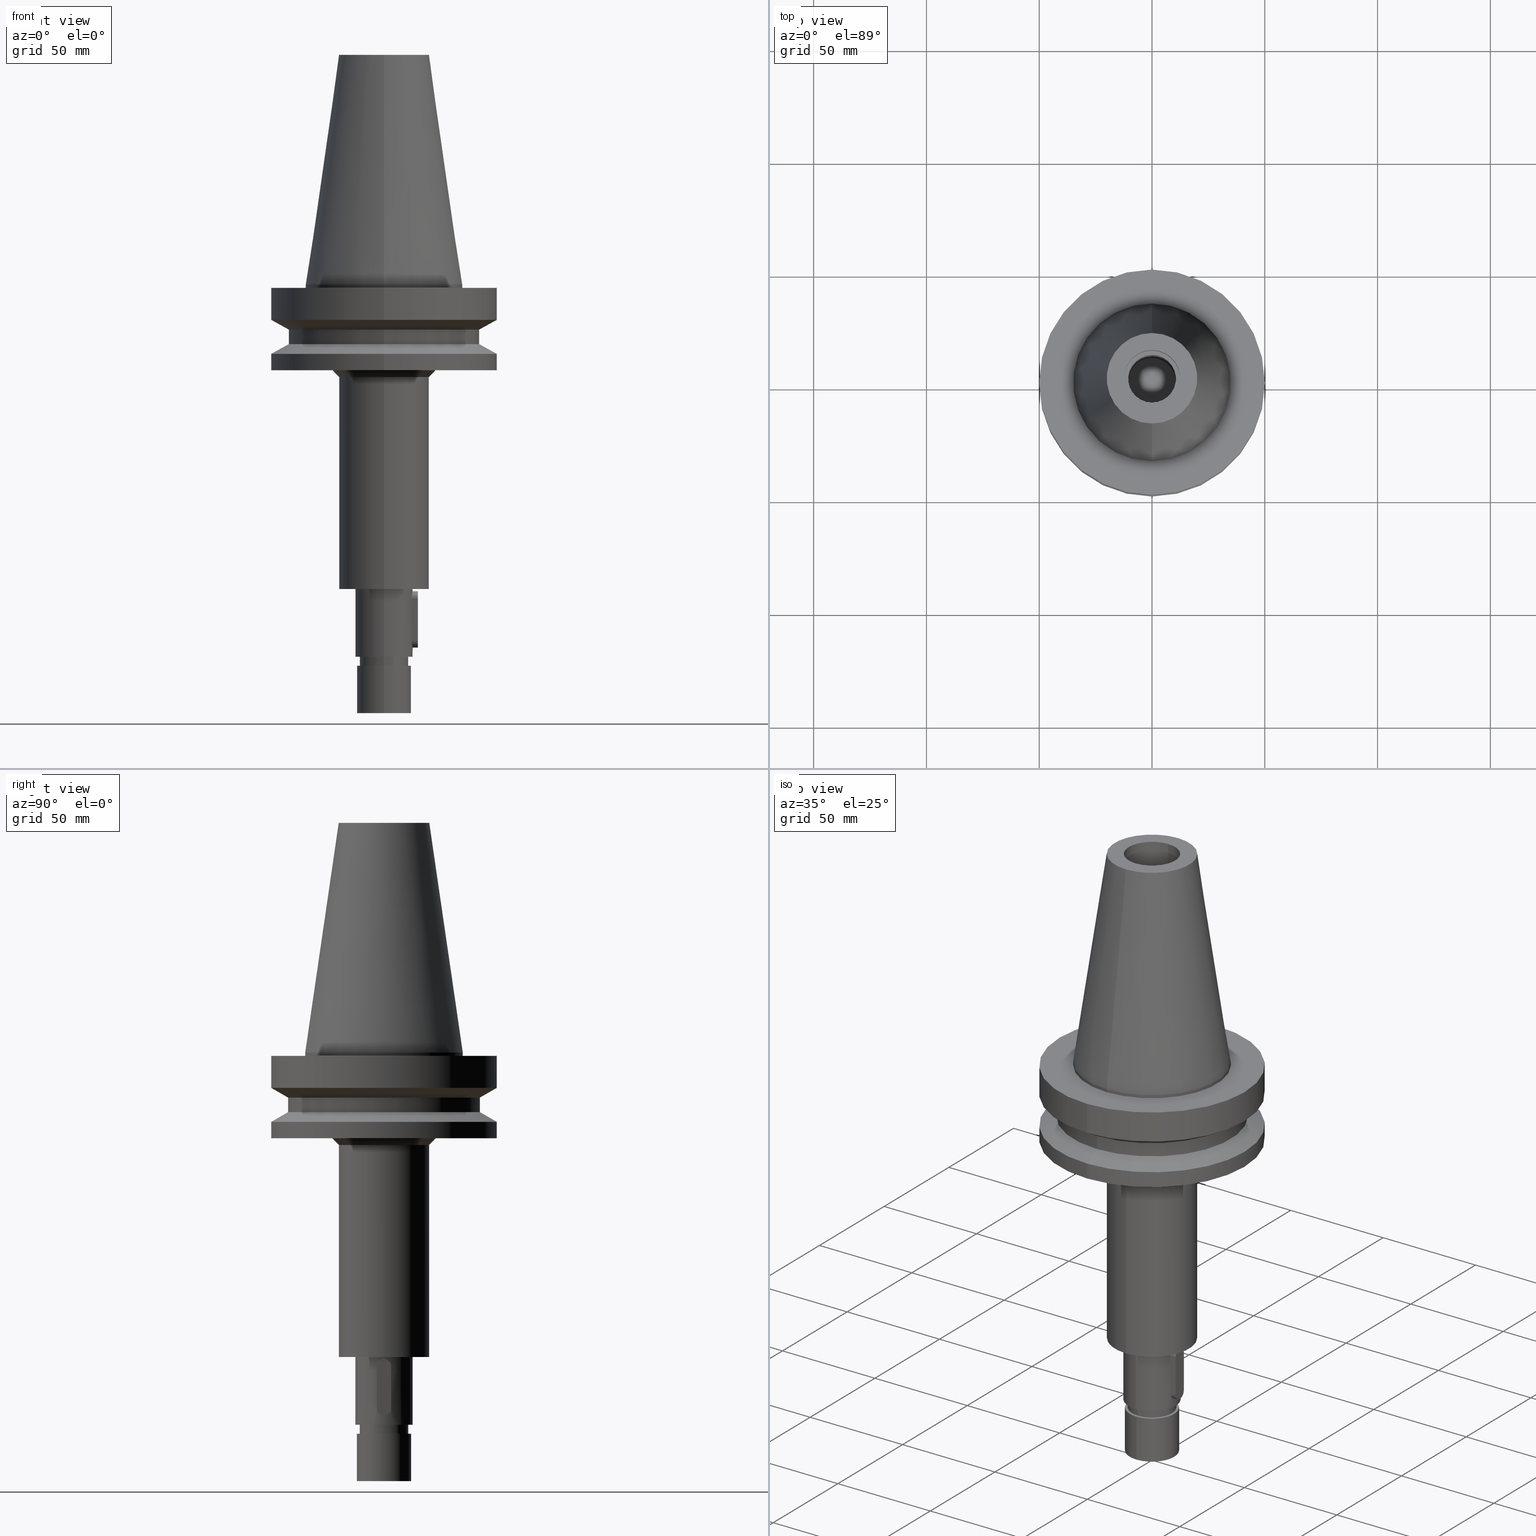
[diagram: canonical four-view strip — front | top / right | iso, engineering-drawing reading convention]
A machine part, canonical four-view strip (front | top / right | iso — engineering-drawing reading convention). The complete STEP part file that produces these views, byte-faithful:
ISO-10303-21;
HEADER;
FILE_DESCRIPTION((''),'2;1');
FILE_NAME('BBT50-SCA25_4-135','2018-09-05T',('ykawabe'),(''),
'CREO PARAMETRIC BY PTC INC, 2016380','CREO PARAMETRIC BY PTC INC, 2016380','');
FILE_SCHEMA(('AUTOMOTIVE_DESIGN { 1 0 10303 214 1 1 1 1 }'));
ENDSEC;
DATA;
#17=DIRECTION('',(0.E0,0.E0,1.E0));
#18=VECTOR('',#17,1.3E1);
#19=CARTESIAN_POINT('',(0.E0,1.25E1,8.88E1));
#20=LINE('',#19,#18);
#21=DRAUGHTING_PRE_DEFINED_CURVE_FONT('continuous');
#22=CURVE_STYLE('',#21,POSITIVE_LENGTH_MEASURE(2.E-2),#4);
#23=PRESENTATION_STYLE_ASSIGNMENT((#22));
#24=STYLED_ITEM('',(#23),#20);
#25=DIRECTION('',(0.E0,0.E0,1.E0));
#26=VECTOR('',#25,1.3E1);
#27=CARTESIAN_POINT('',(0.E0,-1.25E1,8.88E1));
#28=LINE('',#27,#26);
#29=CURVE_STYLE('',#21,POSITIVE_LENGTH_MEASURE(2.E-2),#4);
#30=PRESENTATION_STYLE_ASSIGNMENT((#29));
#31=STYLED_ITEM('',(#30),#28);
#32=CARTESIAN_POINT('',(0.E0,2.650013208675E-14,8.88E1));
#33=DIRECTION('',(0.E0,0.E0,-1.E0));
#34=DIRECTION('',(0.E0,-1.E0,0.E0));
#35=AXIS2_PLACEMENT_3D('',#32,#33,#34);
#37=CURVE_STYLE('',#21,POSITIVE_LENGTH_MEASURE(2.E-2),#4);
#38=PRESENTATION_STYLE_ASSIGNMENT((#37));
#39=STYLED_ITEM('',(#38),#36);
#40=CARTESIAN_POINT('',(0.E0,2.650013208675E-14,8.88E1));
#41=DIRECTION('',(0.E0,0.E0,-1.E0));
#42=DIRECTION('',(0.E0,1.E0,0.E0));
#43=AXIS2_PLACEMENT_3D('',#40,#41,#42);
#45=CURVE_STYLE('',#21,POSITIVE_LENGTH_MEASURE(2.E-2),#4);
#46=PRESENTATION_STYLE_ASSIGNMENT((#45));
#47=STYLED_ITEM('',(#46),#44);
#48=CARTESIAN_POINT('',(0.E0,2.650013208675E-14,8.88E1));
#49=DIRECTION('',(0.E0,0.E0,1.E0));
#50=DIRECTION('',(0.E0,-1.E0,0.E0));
#51=AXIS2_PLACEMENT_3D('',#48,#49,#50);
#53=CURVE_STYLE('',#21,POSITIVE_LENGTH_MEASURE(2.E-2),#4);
#54=PRESENTATION_STYLE_ASSIGNMENT((#53));
#55=STYLED_ITEM('',(#54),#52);
#56=CARTESIAN_POINT('',(0.E0,2.650013208675E-14,8.88E1));
#57=DIRECTION('',(0.E0,0.E0,1.E0));
#58=DIRECTION('',(0.E0,1.E0,0.E0));
#59=AXIS2_PLACEMENT_3D('',#56,#57,#58);
#61=CURVE_STYLE('',#21,POSITIVE_LENGTH_MEASURE(2.E-2),#4);
#62=PRESENTATION_STYLE_ASSIGNMENT((#61));
#63=STYLED_ITEM('',(#62),#60);
#64=DIRECTION('',(0.E0,0.E0,1.E0));
#65=VECTOR('',#64,7.7E1);
#66=CARTESIAN_POINT('',(0.E0,1.06E1,1.18E1));
#67=LINE('',#66,#65);
#68=CURVE_STYLE('',#21,POSITIVE_LENGTH_MEASURE(2.E-2),#4);
#69=PRESENTATION_STYLE_ASSIGNMENT((#68));
#70=STYLED_ITEM('',(#69),#67);
#71=DIRECTION('',(0.E0,0.E0,1.E0));
#72=VECTOR('',#71,7.7E1);
#73=CARTESIAN_POINT('',(0.E0,-1.06E1,1.18E1));
#74=LINE('',#73,#72);
#75=CURVE_STYLE('',#21,POSITIVE_LENGTH_MEASURE(2.E-2),#4);
#76=PRESENTATION_STYLE_ASSIGNMENT((#75));
#77=STYLED_ITEM('',(#76),#74);
#78=CARTESIAN_POINT('',(0.E0,2.650013208675E-14,1.18E1));
#79=DIRECTION('',(0.E0,0.E0,-1.E0));
#80=DIRECTION('',(0.E0,-1.E0,0.E0));
#81=AXIS2_PLACEMENT_3D('',#78,#79,#80);
#83=CURVE_STYLE('',#21,POSITIVE_LENGTH_MEASURE(2.E-2),#4);
#84=PRESENTATION_STYLE_ASSIGNMENT((#83));
#85=STYLED_ITEM('',(#84),#82);
#86=CARTESIAN_POINT('',(0.E0,2.650013208675E-14,1.18E1));
#87=DIRECTION('',(0.E0,0.E0,-1.E0));
#88=DIRECTION('',(0.E0,1.E0,0.E0));
#89=AXIS2_PLACEMENT_3D('',#86,#87,#88);
#91=CURVE_STYLE('',#21,POSITIVE_LENGTH_MEASURE(2.E-2),#4);
#92=PRESENTATION_STYLE_ASSIGNMENT((#91));
#93=STYLED_ITEM('',(#92),#90);
#94=CARTESIAN_POINT('',(0.E0,1.847992019913E-14,1.018E2));
#95=DIRECTION('',(0.E0,0.E0,-1.E0));
#96=DIRECTION('',(0.E0,1.E0,0.E0));
#97=AXIS2_PLACEMENT_3D('',#94,#95,#96);
#99=CURVE_STYLE('',#21,POSITIVE_LENGTH_MEASURE(2.E-2),#4);
#100=PRESENTATION_STYLE_ASSIGNMENT((#99));
#101=STYLED_ITEM('',(#100),#98);
#102=CARTESIAN_POINT('',(0.E0,1.847992019913E-14,1.018E2));
#103=DIRECTION('',(0.E0,0.E0,-1.E0));
#104=DIRECTION('',(0.E0,-1.E0,0.E0));
#105=AXIS2_PLACEMENT_3D('',#102,#103,#104);
#107=CURVE_STYLE('',#21,POSITIVE_LENGTH_MEASURE(2.E-2),#4);
#108=PRESENTATION_STYLE_ASSIGNMENT((#107));
#109=STYLED_ITEM('',(#108),#106);
#110=CARTESIAN_POINT('',(0.E0,2.650013208675E-14,1.018E2));
#111=DIRECTION('',(0.E0,0.E0,1.E0));
#112=DIRECTION('',(0.E0,1.E0,0.E0));
#113=AXIS2_PLACEMENT_3D('',#110,#111,#112);
#115=CURVE_STYLE('',#21,POSITIVE_LENGTH_MEASURE(2.E-2),#4);
#116=PRESENTATION_STYLE_ASSIGNMENT((#115));
#117=STYLED_ITEM('',(#116),#114);
#118=CARTESIAN_POINT('',(0.E0,2.650013208675E-14,1.018E2));
#119=DIRECTION('',(0.E0,0.E0,1.E0));
#120=DIRECTION('',(0.E0,-1.E0,0.E0));
#121=AXIS2_PLACEMENT_3D('',#118,#119,#120);
#123=CURVE_STYLE('',#21,POSITIVE_LENGTH_MEASURE(2.E-2),#4);
#124=PRESENTATION_STYLE_ASSIGNMENT((#123));
#125=STYLED_ITEM('',(#124),#122);
#126=DIRECTION('',(0.E0,1.443043893539E-1,-9.895333461856E-1));
#127=VECTOR('',#126,1.028767755957E2);
#128=CARTESIAN_POINT('',(0.E0,2.007942971896E1,1.018E2));
#129=LINE('',#128,#127);
#130=CURVE_STYLE('',#21,POSITIVE_LENGTH_MEASURE(2.E-2),#4);
#131=PRESENTATION_STYLE_ASSIGNMENT((#130));
#132=STYLED_ITEM('',(#131),#129);
#133=CARTESIAN_POINT('',(0.E0,1.847992019913E-14,3.979039320257E-13));
#134=DIRECTION('',(0.E0,0.E0,-1.E0));
#135=DIRECTION('',(0.E0,1.E0,0.E0));
#136=AXIS2_PLACEMENT_3D('',#133,#134,#135);
#138=CURVE_STYLE('',#21,POSITIVE_LENGTH_MEASURE(2.E-2),#4);
#139=PRESENTATION_STYLE_ASSIGNMENT((#138));
#140=STYLED_ITEM('',(#139),#137);
#141=DIRECTION('',(0.E0,-1.443043893539E-1,-9.895333461856E-1));
#142=VECTOR('',#141,1.028767755957E2);
#143=CARTESIAN_POINT('',(0.E0,-2.007942971896E1,1.018E2));
#144=LINE('',#143,#142);
#145=CURVE_STYLE('',#21,POSITIVE_LENGTH_MEASURE(2.E-2),#4);
#146=PRESENTATION_STYLE_ASSIGNMENT((#145));
#147=STYLED_ITEM('',(#146),#144);
#148=CARTESIAN_POINT('',(0.E0,1.847992019913E-14,3.979039320257E-13));
#149=DIRECTION('',(0.E0,0.E0,-1.E0));
#150=DIRECTION('',(0.E0,-1.E0,0.E0));
#151=AXIS2_PLACEMENT_3D('',#148,#149,#150);
#153=CURVE_STYLE('',#21,POSITIVE_LENGTH_MEASURE(2.E-2),#4);
#154=PRESENTATION_STYLE_ASSIGNMENT((#153));
#155=STYLED_ITEM('',(#154),#152);
#156=DIRECTION('',(0.E0,4.215886898842E-13,-1.E0));
#157=VECTOR('',#156,1.500000000001E0);
#158=CARTESIAN_POINT('',(0.E0,-3.4925E1,5.329070518201E-13));
#159=LINE('',#158,#157);
#160=CURVE_STYLE('',#21,POSITIVE_LENGTH_MEASURE(2.E-2),#4);
#161=PRESENTATION_STYLE_ASSIGNMENT((#160));
#162=STYLED_ITEM('',(#161),#159);
#163=DIRECTION('',(0.E0,-4.263256414559E-13,-1.E0));
#164=VECTOR('',#163,1.500000000001E0);
#165=CARTESIAN_POINT('',(0.E0,3.4925E1,5.329070518201E-13));
#166=LINE('',#165,#164);
#167=CURVE_STYLE('',#21,POSITIVE_LENGTH_MEASURE(2.E-2),#4);
#168=PRESENTATION_STYLE_ASSIGNMENT((#167));
#169=STYLED_ITEM('',(#168),#166);
#170=CARTESIAN_POINT('',(0.E0,2.650013208675E-14,-1.5E0));
#171=DIRECTION('',(0.E0,0.E0,-1.E0));
#172=DIRECTION('',(0.E0,1.E0,0.E0));
#173=AXIS2_PLACEMENT_3D('',#170,#171,#172);
#175=CURVE_STYLE('',#21,POSITIVE_LENGTH_MEASURE(2.E-2),#4);
#176=PRESENTATION_STYLE_ASSIGNMENT((#175));
#177=STYLED_ITEM('',(#176),#174);
#178=CARTESIAN_POINT('',(0.E0,2.650013208675E-14,-1.5E0));
#179=DIRECTION('',(0.E0,0.E0,-1.E0));
#180=DIRECTION('',(0.E0,-1.E0,0.E0));
#181=AXIS2_PLACEMENT_3D('',#178,#179,#180);
#183=CURVE_STYLE('',#21,POSITIVE_LENGTH_MEASURE(2.E-2),#4);
#184=PRESENTATION_STYLE_ASSIGNMENT((#183));
#185=STYLED_ITEM('',(#184),#182);
#186=CARTESIAN_POINT('',(0.E0,2.650013208675E-14,-1.5E0));
#187=DIRECTION('',(0.E0,0.E0,1.E0));
#188=DIRECTION('',(0.E0,1.E0,0.E0));
#189=AXIS2_PLACEMENT_3D('',#186,#187,#188);
#191=CURVE_STYLE('',#21,POSITIVE_LENGTH_MEASURE(2.E-2),#4);
#192=PRESENTATION_STYLE_ASSIGNMENT((#191));
#193=STYLED_ITEM('',(#192),#190);
#194=CARTESIAN_POINT('',(0.E0,2.650013208675E-14,-1.5E0));
#195=DIRECTION('',(0.E0,0.E0,1.E0));
#196=DIRECTION('',(0.E0,-1.E0,0.E0));
#197=AXIS2_PLACEMENT_3D('',#194,#195,#196);
#199=CURVE_STYLE('',#21,POSITIVE_LENGTH_MEASURE(2.E-2),#4);
#200=PRESENTATION_STYLE_ASSIGNMENT((#199));
#201=STYLED_ITEM('',(#200),#198);
#202=DIRECTION('',(0.E0,-1.605441053570E-14,-1.E0));
#203=VECTOR('',#202,1.416269223573E1);
#204=CARTESIAN_POINT('',(0.E0,5.E1,-1.5E0));
#205=LINE('',#204,#203);
#206=CURVE_STYLE('',#21,POSITIVE_LENGTH_MEASURE(2.E-2),#4);
#207=PRESENTATION_STYLE_ASSIGNMENT((#206));
#208=STYLED_ITEM('',(#207),#205);
#209=DIRECTION('',(0.E0,1.555271020646E-14,-1.E0));
#210=VECTOR('',#209,1.416269223573E1);
#211=CARTESIAN_POINT('',(0.E0,-5.E1,-1.5E0));
#212=LINE('',#211,#210);
#213=CURVE_STYLE('',#21,POSITIVE_LENGTH_MEASURE(2.E-2),#4);
#214=PRESENTATION_STYLE_ASSIGNMENT((#213));
#215=STYLED_ITEM('',(#214),#212);
#216=CARTESIAN_POINT('',(0.E0,1.006319759054E-14,-1.566269223573E1));
#217=DIRECTION('',(0.E0,0.E0,1.E0));
#218=DIRECTION('',(0.E0,1.E0,0.E0));
#219=AXIS2_PLACEMENT_3D('',#216,#217,#218);
#221=CURVE_STYLE('',#21,POSITIVE_LENGTH_MEASURE(2.E-2),#4);
#222=PRESENTATION_STYLE_ASSIGNMENT((#221));
#223=STYLED_ITEM('',(#222),#220);
#224=DIRECTION('',(0.E0,8.660254037845E-1,-4.999999999999E-1));
#225=VECTOR('',#224,8.660254037843E0);
#226=CARTESIAN_POINT('',(0.E0,-5.E1,-1.566269223573E1));
#227=LINE('',#226,#225);
#228=CURVE_STYLE('',#21,POSITIVE_LENGTH_MEASURE(2.E-2),#4);
#229=PRESENTATION_STYLE_ASSIGNMENT((#228));
#230=STYLED_ITEM('',(#229),#227);
#231=CARTESIAN_POINT('',(0.E0,1.006319759054E-14,-1.999281925465E1));
#232=DIRECTION('',(0.E0,0.E0,-1.E0));
#233=DIRECTION('',(0.E0,-1.E0,0.E0));
#234=AXIS2_PLACEMENT_3D('',#231,#232,#233);
#236=CURVE_STYLE('',#21,POSITIVE_LENGTH_MEASURE(2.E-2),#4);
#237=PRESENTATION_STYLE_ASSIGNMENT((#236));
#238=STYLED_ITEM('',(#237),#235);
#239=DIRECTION('',(0.E0,-8.660254037845E-1,-4.999999999999E-1));
#240=VECTOR('',#239,8.660254037843E0);
#241=CARTESIAN_POINT('',(0.E0,5.E1,-1.566269223573E1));
#242=LINE('',#241,#240);
#243=CURVE_STYLE('',#21,POSITIVE_LENGTH_MEASURE(2.E-2),#4);
#244=PRESENTATION_STYLE_ASSIGNMENT((#243));
#245=STYLED_ITEM('',(#244),#242);
#246=CARTESIAN_POINT('',(0.E0,1.006319759054E-14,-1.999281925465E1));
#247=DIRECTION('',(0.E0,0.E0,-1.E0));
#248=DIRECTION('',(0.E0,1.E0,0.E0));
#249=AXIS2_PLACEMENT_3D('',#246,#247,#248);
#251=CURVE_STYLE('',#21,POSITIVE_LENGTH_MEASURE(2.E-2),#4);
#252=PRESENTATION_STYLE_ASSIGNMENT((#251));
#253=STYLED_ITEM('',(#252),#250);
#254=CARTESIAN_POINT('',(0.E0,1.006319759054E-14,-1.566269223573E1));
#255=DIRECTION('',(0.E0,0.E0,1.E0));
#256=DIRECTION('',(0.E0,-1.E0,0.E0));
#257=AXIS2_PLACEMENT_3D('',#254,#255,#256);
#259=CURVE_STYLE('',#21,POSITIVE_LENGTH_MEASURE(2.E-2),#4);
#260=PRESENTATION_STYLE_ASSIGNMENT((#259));
#261=STYLED_ITEM('',(#260),#258);
#262=DIRECTION('',(0.E0,0.E0,-1.E0));
#263=VECTOR('',#262,6.414361490699E0);
#264=CARTESIAN_POINT('',(0.E0,4.25E1,-1.999281925465E1));
#265=LINE('',#264,#263);
#266=CURVE_STYLE('',#21,POSITIVE_LENGTH_MEASURE(2.E-2),#4);
#267=PRESENTATION_STYLE_ASSIGNMENT((#266));
#268=STYLED_ITEM('',(#267),#265);
#269=DIRECTION('',(0.E0,0.E0,-1.E0));
#270=VECTOR('',#269,6.414361490699E0);
#271=CARTESIAN_POINT('',(0.E0,-4.25E1,-1.999281925465E1));
#272=LINE('',#271,#270);
#273=CURVE_STYLE('',#21,POSITIVE_LENGTH_MEASURE(2.E-2),#4);
#274=PRESENTATION_STYLE_ASSIGNMENT((#273));
#275=STYLED_ITEM('',(#274),#272);
#276=CARTESIAN_POINT('',(0.E0,0.E0,-2.640718074535E1));
#277=DIRECTION('',(0.E0,0.E0,1.E0));
#278=DIRECTION('',(0.E0,1.E0,0.E0));
#279=AXIS2_PLACEMENT_3D('',#276,#277,#278);
#281=CURVE_STYLE('',#21,POSITIVE_LENGTH_MEASURE(2.E-2),#4);
#282=PRESENTATION_STYLE_ASSIGNMENT((#281));
#283=STYLED_ITEM('',(#282),#280);
#284=DIRECTION('',(0.E0,-8.660254037845E-1,-4.999999999999E-1));
#285=VECTOR('',#284,8.660254037843E0);
#286=CARTESIAN_POINT('',(0.E0,-4.25E1,-2.640718074535E1));
#287=LINE('',#286,#285);
#288=CURVE_STYLE('',#21,POSITIVE_LENGTH_MEASURE(2.E-2),#4);
#289=PRESENTATION_STYLE_ASSIGNMENT((#288));
#290=STYLED_ITEM('',(#289),#287);
#291=CARTESIAN_POINT('',(0.E0,0.E0,-3.073730776427E1));
#292=DIRECTION('',(0.E0,0.E0,-1.E0));
#293=DIRECTION('',(0.E0,-1.E0,0.E0));
#294=AXIS2_PLACEMENT_3D('',#291,#292,#293);
#296=CURVE_STYLE('',#21,POSITIVE_LENGTH_MEASURE(2.E-2),#4);
#297=PRESENTATION_STYLE_ASSIGNMENT((#296));
#298=STYLED_ITEM('',(#297),#295);
#299=DIRECTION('',(0.E0,8.660254037845E-1,-4.999999999999E-1));
#300=VECTOR('',#299,8.660254037843E0);
#301=CARTESIAN_POINT('',(0.E0,4.25E1,-2.640718074535E1));
#302=LINE('',#301,#300);
#303=CURVE_STYLE('',#21,POSITIVE_LENGTH_MEASURE(2.E-2),#4);
#304=PRESENTATION_STYLE_ASSIGNMENT((#303));
#305=STYLED_ITEM('',(#304),#302);
#306=CARTESIAN_POINT('',(0.E0,0.E0,-3.073730776427E1));
#307=DIRECTION('',(0.E0,0.E0,-1.E0));
#308=DIRECTION('',(0.E0,1.E0,0.E0));
#309=AXIS2_PLACEMENT_3D('',#306,#307,#308);
#311=CURVE_STYLE('',#21,POSITIVE_LENGTH_MEASURE(2.E-2),#4);
#312=PRESENTATION_STYLE_ASSIGNMENT((#311));
#313=STYLED_ITEM('',(#312),#310);
#314=CARTESIAN_POINT('',(0.E0,0.E0,-2.640718074535E1));
#315=DIRECTION('',(0.E0,0.E0,1.E0));
#316=DIRECTION('',(0.E0,-1.E0,0.E0));
#317=AXIS2_PLACEMENT_3D('',#314,#315,#316);
#319=CURVE_STYLE('',#21,POSITIVE_LENGTH_MEASURE(2.E-2),#4);
#320=PRESENTATION_STYLE_ASSIGNMENT((#319));
#321=STYLED_ITEM('',(#320),#318);
#322=DIRECTION('',(0.E0,3.130707843087E-14,-1.E0));
#323=VECTOR('',#322,7.262692235730E0);
#324=CARTESIAN_POINT('',(0.E0,5.E1,-3.073730776427E1));
#325=LINE('',#324,#323);
#326=CURVE_STYLE('',#21,POSITIVE_LENGTH_MEASURE(2.E-2),#4);
#327=PRESENTATION_STYLE_ASSIGNMENT((#326));
#328=STYLED_ITEM('',(#327),#325);
#329=DIRECTION('',(0.E0,-3.032873222990E-14,-1.E0));
#330=VECTOR('',#329,7.262692235730E0);
#331=CARTESIAN_POINT('',(0.E0,-5.E1,-3.073730776427E1));
#332=LINE('',#331,#330);
#333=CURVE_STYLE('',#21,POSITIVE_LENGTH_MEASURE(2.E-2),#4);
#334=PRESENTATION_STYLE_ASSIGNMENT((#333));
#335=STYLED_ITEM('',(#334),#332);
#336=CARTESIAN_POINT('',(0.E0,2.650013208675E-14,-3.8E1));
#337=DIRECTION('',(0.E0,0.E0,1.E0));
#338=DIRECTION('',(0.E0,1.E0,0.E0));
#339=AXIS2_PLACEMENT_3D('',#336,#337,#338);
#341=CURVE_STYLE('',#21,POSITIVE_LENGTH_MEASURE(2.E-2),#4);
#342=PRESENTATION_STYLE_ASSIGNMENT((#341));
#343=STYLED_ITEM('',(#342),#340);
#344=CARTESIAN_POINT('',(0.E0,2.650013208675E-14,-3.8E1));
#345=DIRECTION('',(0.E0,0.E0,1.E0));
#346=DIRECTION('',(0.E0,-1.E0,0.E0));
#347=AXIS2_PLACEMENT_3D('',#344,#345,#346);
#349=CURVE_STYLE('',#21,POSITIVE_LENGTH_MEASURE(2.E-2),#4);
#350=PRESENTATION_STYLE_ASSIGNMENT((#349));
#351=STYLED_ITEM('',(#350),#348);
#352=CARTESIAN_POINT('',(0.E0,0.E0,-3.8E1));
#353=DIRECTION('',(0.E0,0.E0,-1.E0));
#354=DIRECTION('',(0.E0,1.E0,0.E0));
#355=AXIS2_PLACEMENT_3D('',#352,#353,#354);
#357=CURVE_STYLE('',#21,POSITIVE_LENGTH_MEASURE(2.E-2),#4);
#358=PRESENTATION_STYLE_ASSIGNMENT((#357));
#359=STYLED_ITEM('',(#358),#356);
#360=CARTESIAN_POINT('',(0.E0,0.E0,-3.8E1));
#361=DIRECTION('',(0.E0,0.E0,-1.E0));
#362=DIRECTION('',(0.E0,-1.E0,0.E0));
#363=AXIS2_PLACEMENT_3D('',#360,#361,#362);
#365=CURVE_STYLE('',#21,POSITIVE_LENGTH_MEASURE(2.E-2),#4);
#366=PRESENTATION_STYLE_ASSIGNMENT((#365));
#367=STYLED_ITEM('',(#366),#364);
#368=DIRECTION('',(0.E0,-7.071067811865E-1,-7.071067811865E-1));
#369=VECTOR('',#368,4.242640687119E0);
#370=CARTESIAN_POINT('',(0.E0,2.3E1,-3.8E1));
#371=LINE('',#370,#369);
#372=CURVE_STYLE('',#21,POSITIVE_LENGTH_MEASURE(2.E-2),#4);
#373=PRESENTATION_STYLE_ASSIGNMENT((#372));
#374=STYLED_ITEM('',(#373),#371);
#375=CARTESIAN_POINT('',(0.E0,0.E0,-4.1E1));
#376=DIRECTION('',(0.E0,0.E0,-1.E0));
#377=DIRECTION('',(0.E0,1.E0,0.E0));
#378=AXIS2_PLACEMENT_3D('',#375,#376,#377);
#380=CURVE_STYLE('',#21,POSITIVE_LENGTH_MEASURE(2.E-2),#4);
#381=PRESENTATION_STYLE_ASSIGNMENT((#380));
#382=STYLED_ITEM('',(#381),#379);
#383=DIRECTION('',(0.E0,7.071067811866E-1,-7.071067811865E-1));
#384=VECTOR('',#383,4.242640687119E0);
#385=CARTESIAN_POINT('',(0.E0,-2.3E1,-3.8E1));
#386=LINE('',#385,#384);
#387=CURVE_STYLE('',#21,POSITIVE_LENGTH_MEASURE(2.E-2),#4);
#388=PRESENTATION_STYLE_ASSIGNMENT((#387));
#389=STYLED_ITEM('',(#388),#386);
#390=CARTESIAN_POINT('',(0.E0,0.E0,-4.1E1));
#391=DIRECTION('',(0.E0,0.E0,-1.E0));
#392=DIRECTION('',(0.E0,-1.E0,0.E0));
#393=AXIS2_PLACEMENT_3D('',#390,#391,#392);
#395=CURVE_STYLE('',#21,POSITIVE_LENGTH_MEASURE(2.E-2),#4);
#396=PRESENTATION_STYLE_ASSIGNMENT((#395));
#397=STYLED_ITEM('',(#396),#394);
#398=DIRECTION('',(0.E0,0.E0,-1.E0));
#399=VECTOR('',#398,9.4E1);
#400=CARTESIAN_POINT('',(0.E0,-2.E1,-4.1E1));
#401=LINE('',#400,#399);
#402=CURVE_STYLE('',#21,POSITIVE_LENGTH_MEASURE(2.E-2),#4);
#403=PRESENTATION_STYLE_ASSIGNMENT((#402));
#404=STYLED_ITEM('',(#403),#401);
#405=DIRECTION('',(0.E0,0.E0,-1.E0));
#406=VECTOR('',#405,9.4E1);
#407=CARTESIAN_POINT('',(0.E0,2.E1,-4.1E1));
#408=LINE('',#407,#406);
#409=CURVE_STYLE('',#21,POSITIVE_LENGTH_MEASURE(2.E-2),#4);
#410=PRESENTATION_STYLE_ASSIGNMENT((#409));
#411=STYLED_ITEM('',(#410),#408);
#412=CARTESIAN_POINT('',(0.E0,2.650013208675E-14,-1.35E2));
#413=DIRECTION('',(0.E0,0.E0,1.E0));
#414=DIRECTION('',(0.E0,1.E0,0.E0));
#415=AXIS2_PLACEMENT_3D('',#412,#413,#414);
#417=CURVE_STYLE('',#21,POSITIVE_LENGTH_MEASURE(2.E-2),#4);
#418=PRESENTATION_STYLE_ASSIGNMENT((#417));
#419=STYLED_ITEM('',(#418),#416);
#420=CARTESIAN_POINT('',(0.E0,2.650013208675E-14,-1.35E2));
#421=DIRECTION('',(0.E0,0.E0,1.E0));
#422=DIRECTION('',(0.E0,-1.E0,0.E0));
#423=AXIS2_PLACEMENT_3D('',#420,#421,#422);
#425=CURVE_STYLE('',#21,POSITIVE_LENGTH_MEASURE(2.E-2),#4);
#426=PRESENTATION_STYLE_ASSIGNMENT((#425));
#427=STYLED_ITEM('',(#426),#424);
#428=CARTESIAN_POINT('',(0.E0,2.650013208675E-14,-1.35E2));
#429=DIRECTION('',(0.E0,0.E0,-1.E0));
#430=DIRECTION('',(0.E0,1.E0,0.E0));
#431=AXIS2_PLACEMENT_3D('',#428,#429,#430);
#433=CURVE_STYLE('',#21,POSITIVE_LENGTH_MEASURE(2.E-2),#4);
#434=PRESENTATION_STYLE_ASSIGNMENT((#433));
#435=STYLED_ITEM('',(#434),#432);
#436=CARTESIAN_POINT('',(0.E0,2.650013208675E-14,-1.35E2));
#437=DIRECTION('',(0.E0,0.E0,-1.E0));
#438=DIRECTION('',(0.E0,-1.E0,0.E0));
#439=AXIS2_PLACEMENT_3D('',#436,#437,#438);
#441=CURVE_STYLE('',#21,POSITIVE_LENGTH_MEASURE(2.E-2),#4);
#442=PRESENTATION_STYLE_ASSIGNMENT((#441));
#443=STYLED_ITEM('',(#442),#440);
#444=DIRECTION('',(0.E0,0.E0,-1.E0));
#445=VECTOR('',#444,3.E1);
#446=CARTESIAN_POINT('',(0.E0,1.27E1,-1.35E2));
#447=LINE('',#446,#445);
#448=CURVE_STYLE('',#21,POSITIVE_LENGTH_MEASURE(2.E-2),#4);
#449=PRESENTATION_STYLE_ASSIGNMENT((#448));
#450=STYLED_ITEM('',(#449),#447);
#451=DIRECTION('',(0.E0,0.E0,-1.E0));
#452=VECTOR('',#451,1.865E1);
#453=CARTESIAN_POINT('',(1.229672212421E1,-3.175E0,-1.39175E2));
#454=LINE('',#453,#452);
#455=CURVE_STYLE('',#21,POSITIVE_LENGTH_MEASURE(2.E-2),#4);
#456=PRESENTATION_STYLE_ASSIGNMENT((#455));
#457=STYLED_ITEM('',(#456),#454);
#458=DIRECTION('',(0.E0,0.E0,1.E0));
#459=VECTOR('',#458,1.865E1);
#460=CARTESIAN_POINT('',(1.229672212421E1,3.175E0,-1.57825E2));
#461=LINE('',#460,#459);
#462=CURVE_STYLE('',#21,POSITIVE_LENGTH_MEASURE(2.E-2),#4);
#463=PRESENTATION_STYLE_ASSIGNMENT((#462));
#464=STYLED_ITEM('',(#463),#461);
#465=DIRECTION('',(0.E0,0.E0,-1.E0));
#466=VECTOR('',#465,3.E1);
#467=CARTESIAN_POINT('',(0.E0,-1.27E1,-1.35E2));
#468=LINE('',#467,#466);
#469=CURVE_STYLE('',#21,POSITIVE_LENGTH_MEASURE(2.E-2),#4);
#470=PRESENTATION_STYLE_ASSIGNMENT((#469));
#471=STYLED_ITEM('',(#470),#468);
#472=CARTESIAN_POINT('',(0.E0,2.650013208675E-14,-1.65E2));
#473=DIRECTION('',(0.E0,0.E0,1.E0));
#474=DIRECTION('',(0.E0,1.E0,0.E0));
#475=AXIS2_PLACEMENT_3D('',#472,#473,#474);
#477=CURVE_STYLE('',#21,POSITIVE_LENGTH_MEASURE(2.E-2),#4);
#478=PRESENTATION_STYLE_ASSIGNMENT((#477));
#479=STYLED_ITEM('',(#478),#476);
#480=CARTESIAN_POINT('',(0.E0,2.650013208675E-14,-1.65E2));
#481=DIRECTION('',(0.E0,0.E0,1.E0));
#482=DIRECTION('',(0.E0,-1.E0,0.E0));
#483=AXIS2_PLACEMENT_3D('',#480,#481,#482);
#485=CURVE_STYLE('',#21,POSITIVE_LENGTH_MEASURE(2.E-2),#4);
#486=PRESENTATION_STYLE_ASSIGNMENT((#485));
#487=STYLED_ITEM('',(#486),#484);
#488=CARTESIAN_POINT('',(0.E0,2.650013208675E-14,-1.65E2));
#489=DIRECTION('',(0.E0,0.E0,-1.E0));
#490=DIRECTION('',(0.E0,1.E0,0.E0));
#491=AXIS2_PLACEMENT_3D('',#488,#489,#490);
#493=CURVE_STYLE('',#21,POSITIVE_LENGTH_MEASURE(2.E-2),#4);
#494=PRESENTATION_STYLE_ASSIGNMENT((#493));
#495=STYLED_ITEM('',(#494),#492);
#496=CARTESIAN_POINT('',(0.E0,2.650013208675E-14,-1.65E2));
#497=DIRECTION('',(0.E0,0.E0,-1.E0));
#498=DIRECTION('',(0.E0,-1.E0,0.E0));
#499=AXIS2_PLACEMENT_3D('',#496,#497,#498);
#501=CURVE_STYLE('',#21,POSITIVE_LENGTH_MEASURE(2.E-2),#4);
#502=PRESENTATION_STYLE_ASSIGNMENT((#501));
#503=STYLED_ITEM('',(#502),#500);
#504=DIRECTION('',(0.E0,0.E0,-1.E0));
#505=VECTOR('',#504,4.E0);
#506=CARTESIAN_POINT('',(0.E0,1.075E1,-1.65E2));
#507=LINE('',#506,#505);
#508=CURVE_STYLE('',#21,POSITIVE_LENGTH_MEASURE(2.E-2),#4);
#509=PRESENTATION_STYLE_ASSIGNMENT((#508));
#510=STYLED_ITEM('',(#509),#507);
#511=DIRECTION('',(0.E0,0.E0,-1.E0));
#512=VECTOR('',#511,4.E0);
#513=CARTESIAN_POINT('',(0.E0,-1.075E1,-1.65E2));
#514=LINE('',#513,#512);
#515=CURVE_STYLE('',#21,POSITIVE_LENGTH_MEASURE(2.E-2),#4);
#516=PRESENTATION_STYLE_ASSIGNMENT((#515));
#517=STYLED_ITEM('',(#516),#514);
#518=CARTESIAN_POINT('',(0.E0,2.650013208675E-14,-1.69E2));
#519=DIRECTION('',(0.E0,0.E0,-1.E0));
#520=DIRECTION('',(0.E0,1.E0,0.E0));
#521=AXIS2_PLACEMENT_3D('',#518,#519,#520);
#523=CURVE_STYLE('',#21,POSITIVE_LENGTH_MEASURE(2.E-2),#4);
#524=PRESENTATION_STYLE_ASSIGNMENT((#523));
#525=STYLED_ITEM('',(#524),#522);
#526=CARTESIAN_POINT('',(0.E0,2.650013208675E-14,-1.69E2));
#527=DIRECTION('',(0.E0,0.E0,-1.E0));
#528=DIRECTION('',(0.E0,-1.E0,0.E0));
#529=AXIS2_PLACEMENT_3D('',#526,#527,#528);
#531=CURVE_STYLE('',#21,POSITIVE_LENGTH_MEASURE(2.E-2),#4);
#532=PRESENTATION_STYLE_ASSIGNMENT((#531));
#533=STYLED_ITEM('',(#532),#530);
#534=CARTESIAN_POINT('',(0.E0,2.650013208675E-14,-1.69E2));
#535=DIRECTION('',(0.E0,0.E0,1.E0));
#536=DIRECTION('',(0.E0,1.E0,0.E0));
#537=AXIS2_PLACEMENT_3D('',#534,#535,#536);
#539=CURVE_STYLE('',#21,POSITIVE_LENGTH_MEASURE(2.E-2),#4);
#540=PRESENTATION_STYLE_ASSIGNMENT((#539));
#541=STYLED_ITEM('',(#540),#538);
#542=CARTESIAN_POINT('',(0.E0,2.650013208675E-14,-1.69E2));
#543=DIRECTION('',(0.E0,0.E0,1.E0));
#544=DIRECTION('',(0.E0,-1.E0,0.E0));
#545=AXIS2_PLACEMENT_3D('',#542,#543,#544);
#547=CURVE_STYLE('',#21,POSITIVE_LENGTH_MEASURE(2.E-2),#4);
#548=PRESENTATION_STYLE_ASSIGNMENT((#547));
#549=STYLED_ITEM('',(#548),#546);
#550=DIRECTION('',(0.E0,0.E0,-1.E0));
#551=VECTOR('',#550,2.1E1);
#552=CARTESIAN_POINT('',(0.E0,1.2E1,-1.69E2));
#553=LINE('',#552,#551);
#554=CURVE_STYLE('',#21,POSITIVE_LENGTH_MEASURE(2.E-2),#4);
#555=PRESENTATION_STYLE_ASSIGNMENT((#554));
#556=STYLED_ITEM('',(#555),#553);
#557=DIRECTION('',(0.E0,0.E0,-1.E0));
#558=VECTOR('',#557,2.1E1);
#559=CARTESIAN_POINT('',(0.E0,-1.2E1,-1.69E2));
#560=LINE('',#559,#558);
#561=CURVE_STYLE('',#21,POSITIVE_LENGTH_MEASURE(2.E-2),#4);
#562=PRESENTATION_STYLE_ASSIGNMENT((#561));
#563=STYLED_ITEM('',(#562),#560);
#564=CARTESIAN_POINT('',(0.E0,2.650013208675E-14,-1.9E2));
#565=DIRECTION('',(0.E0,0.E0,1.E0));
#566=DIRECTION('',(0.E0,1.E0,0.E0));
#567=AXIS2_PLACEMENT_3D('',#564,#565,#566);
#569=CURVE_STYLE('',#21,POSITIVE_LENGTH_MEASURE(2.E-2),#4);
#570=PRESENTATION_STYLE_ASSIGNMENT((#569));
#571=STYLED_ITEM('',(#570),#568);
#572=CARTESIAN_POINT('',(0.E0,2.650013208675E-14,-1.9E2));
#573=DIRECTION('',(0.E0,0.E0,1.E0));
#574=DIRECTION('',(0.E0,-1.E0,0.E0));
#575=AXIS2_PLACEMENT_3D('',#572,#573,#574);
#577=CURVE_STYLE('',#21,POSITIVE_LENGTH_MEASURE(2.E-2),#4);
#578=PRESENTATION_STYLE_ASSIGNMENT((#577));
#579=STYLED_ITEM('',(#578),#576);
#580=CARTESIAN_POINT('',(1.229672212421E1,-3.175E0,-1.39175E2));
#581=CARTESIAN_POINT('',(1.229672212421E1,-3.175E0,-1.388498147639E2));
#582=CARTESIAN_POINT('',(1.232324215615E1,-3.075246639774E0,-1.381947385076E2));
#583=CARTESIAN_POINT('',(1.243218184237E1,-2.617061022340E0,-1.372853543099E2));
#584=CARTESIAN_POINT('',(1.256513422748E1,-1.907339057315E0,-1.365704893311E2));
#585=CARTESIAN_POINT('',(1.267340293883E1,-9.958308565031E-1,
-1.361036650719E2));
#586=CARTESIAN_POINT('',(1.27E1,-3.312869076259E-1,-1.36E2));
#587=CARTESIAN_POINT('',(1.27E1,0.E0,-1.36E2));
#589=CURVE_STYLE('',#21,POSITIVE_LENGTH_MEASURE(2.E-2),#4);
#590=PRESENTATION_STYLE_ASSIGNMENT((#589));
#591=STYLED_ITEM('',(#590),#588);
#592=CARTESIAN_POINT('',(1.27E1,0.E0,-1.36E2));
#593=CARTESIAN_POINT('',(1.27E1,3.254575511199E-1,-1.36E2));
#594=CARTESIAN_POINT('',(1.267435649866E1,9.808601733695E-1,-1.360999834579E2));
#595=CARTESIAN_POINT('',(1.256788442172E1,1.889417865394E0,-1.365578624499E2));
#596=CARTESIAN_POINT('',(1.243494177085E1,2.604585073970E0,-1.372675651567E2));
#597=CARTESIAN_POINT('',(1.232418787502E1,3.071731316148E0,-1.381802665666E2));
#598=CARTESIAN_POINT('',(1.229672212421E1,3.175E0,-1.388442151567E2));
#599=CARTESIAN_POINT('',(1.229672212421E1,3.175E0,-1.39175E2));
#601=CURVE_STYLE('',#21,POSITIVE_LENGTH_MEASURE(2.E-2),#4);
#602=PRESENTATION_STYLE_ASSIGNMENT((#601));
#603=STYLED_ITEM('',(#602),#600);
#604=DIRECTION('',(1.E0,4.336940439988E-14,0.E0));
#605=VECTOR('',#604,2.703277875790E0);
#606=CARTESIAN_POINT('',(1.229672212421E1,3.175E0,-1.39175E2));
#607=LINE('',#606,#605);
#608=CURVE_STYLE('',#21,POSITIVE_LENGTH_MEASURE(2.E-2),#4);
#609=PRESENTATION_STYLE_ASSIGNMENT((#608));
#610=STYLED_ITEM('',(#609),#607);
#611=DIRECTION('',(-1.E0,4.369796049382E-14,0.E0));
#612=VECTOR('',#611,2.703277875790E0);
#613=CARTESIAN_POINT('',(1.5E1,-3.175E0,-1.39175E2));
#614=LINE('',#613,#612);
#615=CURVE_STYLE('',#21,POSITIVE_LENGTH_MEASURE(2.E-2),#4);
#616=PRESENTATION_STYLE_ASSIGNMENT((#615));
#617=STYLED_ITEM('',(#616),#614);
#618=CARTESIAN_POINT('',(1.229672212421E1,3.175E0,-1.57825E2));
#619=CARTESIAN_POINT('',(1.229672212421E1,3.175E0,-1.581501856648E2));
#620=CARTESIAN_POINT('',(1.232324225063E1,3.075246247683E0,-1.588052625655E2));
#621=CARTESIAN_POINT('',(1.243218187301E1,2.617060920900E0,-1.597146458947E2));
#622=CARTESIAN_POINT('',(1.256513448277E1,1.907337570362E0,-1.604295119453E2));
#623=CARTESIAN_POINT('',(1.267340307456E1,9.958289430475E-1,-1.608963354389E2));
#624=CARTESIAN_POINT('',(1.27E1,3.312860801013E-1,-1.61E2));
#625=CARTESIAN_POINT('',(1.27E1,0.E0,-1.61E2));
#627=CURVE_STYLE('',#21,POSITIVE_LENGTH_MEASURE(2.E-2),#4);
#628=PRESENTATION_STYLE_ASSIGNMENT((#627));
#629=STYLED_ITEM('',(#628),#626);
#630=CARTESIAN_POINT('',(1.27E1,0.E0,-1.61E2));
#631=CARTESIAN_POINT('',(1.27E1,-3.254563373006E-1,-1.61E2));
#632=CARTESIAN_POINT('',(1.267435666967E1,-9.808570219601E-1,
-1.609000171834E2));
#633=CARTESIAN_POINT('',(1.256788519162E1,-1.889412819408E0,-1.604421410378E2));
#634=CARTESIAN_POINT('',(1.243494229499E1,-2.604582876369E0,-1.597324386657E2));
#635=CARTESIAN_POINT('',(1.232418774963E1,-3.071731844576E0,-1.588197328625E2));
#636=CARTESIAN_POINT('',(1.229672212421E1,-3.175E0,-1.581557843416E2));
#637=CARTESIAN_POINT('',(1.229672212421E1,-3.175E0,-1.57825E2));
#639=CURVE_STYLE('',#21,POSITIVE_LENGTH_MEASURE(2.E-2),#4);
#640=PRESENTATION_STYLE_ASSIGNMENT((#639));
#641=STYLED_ITEM('',(#640),#638);
#642=DIRECTION('',(1.E0,-4.369796049382E-14,1.051379500603E-14));
#643=VECTOR('',#642,2.703277875790E0);
#644=CARTESIAN_POINT('',(1.229672212421E1,-3.175E0,-1.57825E2));
#645=LINE('',#644,#643);
#646=CURVE_STYLE('',#21,POSITIVE_LENGTH_MEASURE(2.E-2),#4);
#647=PRESENTATION_STYLE_ASSIGNMENT((#646));
#648=STYLED_ITEM('',(#647),#645);
#649=DIRECTION('',(-1.E0,-4.336940439988E-14,0.E0));
#650=VECTOR('',#649,2.703277875790E0);
#651=CARTESIAN_POINT('',(1.5E1,3.175E0,-1.57825E2));
#652=LINE('',#651,#650);
#653=CURVE_STYLE('',#21,POSITIVE_LENGTH_MEASURE(2.E-2),#4);
#654=PRESENTATION_STYLE_ASSIGNMENT((#653));
#655=STYLED_ITEM('',(#654),#652);
#656=CARTESIAN_POINT('',(1.5E1,0.E0,-1.39175E2));
#657=DIRECTION('',(-1.E0,0.E0,0.E0));
#658=DIRECTION('',(0.E0,-1.E0,0.E0));
#659=AXIS2_PLACEMENT_3D('',#656,#657,#658);
#661=CURVE_STYLE('',#21,POSITIVE_LENGTH_MEASURE(2.E-2),#4);
#662=PRESENTATION_STYLE_ASSIGNMENT((#661));
#663=STYLED_ITEM('',(#662),#660);
#664=CARTESIAN_POINT('',(1.5E1,0.E0,-1.39175E2));
#665=DIRECTION('',(-1.E0,0.E0,0.E0));
#666=DIRECTION('',(0.E0,0.E0,1.E0));
#667=AXIS2_PLACEMENT_3D('',#664,#665,#666);
#669=CURVE_STYLE('',#21,POSITIVE_LENGTH_MEASURE(2.E-2),#4);
#670=PRESENTATION_STYLE_ASSIGNMENT((#669));
#671=STYLED_ITEM('',(#670),#668);
#672=DIRECTION('',(0.E0,0.E0,-1.E0));
#673=VECTOR('',#672,1.865E1);
#674=CARTESIAN_POINT('',(1.5E1,3.175E0,-1.39175E2));
#675=LINE('',#674,#673);
#676=CURVE_STYLE('',#21,POSITIVE_LENGTH_MEASURE(2.E-2),#4);
#677=PRESENTATION_STYLE_ASSIGNMENT((#676));
#678=STYLED_ITEM('',(#677),#675);
#679=CARTESIAN_POINT('',(1.5E1,0.E0,-1.57825E2));
#680=DIRECTION('',(-1.E0,0.E0,0.E0));
#681=DIRECTION('',(0.E0,1.E0,0.E0));
#682=AXIS2_PLACEMENT_3D('',#679,#680,#681);
#684=CURVE_STYLE('',#21,POSITIVE_LENGTH_MEASURE(2.E-2),#4);
#685=PRESENTATION_STYLE_ASSIGNMENT((#684));
#686=STYLED_ITEM('',(#685),#683);
#687=CARTESIAN_POINT('',(1.5E1,0.E0,-1.57825E2));
#688=DIRECTION('',(-1.E0,0.E0,0.E0));
#689=DIRECTION('',(0.E0,0.E0,-1.E0));
#690=AXIS2_PLACEMENT_3D('',#687,#688,#689);
#692=CURVE_STYLE('',#21,POSITIVE_LENGTH_MEASURE(2.E-2),#4);
#693=PRESENTATION_STYLE_ASSIGNMENT((#692));
#694=STYLED_ITEM('',(#693),#691);
#695=DIRECTION('',(0.E0,0.E0,1.E0));
#696=VECTOR('',#695,1.865E1);
#697=CARTESIAN_POINT('',(1.5E1,-3.175E0,-1.57825E2));
#698=LINE('',#697,#696);
#699=CURVE_STYLE('',#21,POSITIVE_LENGTH_MEASURE(2.E-2),#4);
#700=PRESENTATION_STYLE_ASSIGNMENT((#699));
#701=STYLED_ITEM('',(#700),#698);
#702=CARTESIAN_POINT('',(0.E0,1.25E1,8.88E1));
#703=CARTESIAN_POINT('',(0.E0,1.25E1,1.018E2));
#704=VERTEX_POINT('',#702);
#705=VERTEX_POINT('',#703);
#706=CARTESIAN_POINT('',(0.E0,-1.25E1,1.018E2));
#707=VERTEX_POINT('',#706);
#708=CARTESIAN_POINT('',(0.E0,-1.25E1,8.88E1));
#709=VERTEX_POINT('',#708);
#710=CARTESIAN_POINT('',(0.E0,-1.06E1,8.88E1));
#711=CARTESIAN_POINT('',(0.E0,1.06E1,8.88E1));
#712=VERTEX_POINT('',#710);
#713=VERTEX_POINT('',#711);
#714=CARTESIAN_POINT('',(0.E0,1.06E1,1.18E1));
#715=VERTEX_POINT('',#714);
#716=CARTESIAN_POINT('',(0.E0,-1.06E1,1.18E1));
#717=VERTEX_POINT('',#716);
#718=CARTESIAN_POINT('',(0.E0,2.007942971896E1,1.018E2));
#719=CARTESIAN_POINT('',(0.E0,-2.007942971896E1,1.018E2));
#720=VERTEX_POINT('',#718);
#721=VERTEX_POINT('',#719);
#722=CARTESIAN_POINT('',(0.E0,3.4925E1,5.400124791777E-13));
#723=VERTEX_POINT('',#722);
#724=CARTESIAN_POINT('',(0.E0,-3.4925E1,3.979039320257E-13));
#725=VERTEX_POINT('',#724);
#726=CARTESIAN_POINT('',(0.E0,3.4925E1,-1.5E0));
#727=VERTEX_POINT('',#726);
#728=CARTESIAN_POINT('',(0.E0,-3.4925E1,-1.5E0));
#729=VERTEX_POINT('',#728);
#730=CARTESIAN_POINT('',(0.E0,5.E1,-1.5E0));
#731=CARTESIAN_POINT('',(0.E0,-5.E1,-1.5E0));
#732=VERTEX_POINT('',#730);
#733=VERTEX_POINT('',#731);
#734=CARTESIAN_POINT('',(0.E0,5.E1,-1.566269223573E1));
#735=VERTEX_POINT('',#734);
#736=CARTESIAN_POINT('',(1.224646799147E-14,-5.E1,-1.566269223573E1));
#737=VERTEX_POINT('',#736);
#738=CARTESIAN_POINT('',(0.E0,4.25E1,-1.999281925465E1));
#739=VERTEX_POINT('',#738);
#740=CARTESIAN_POINT('',(0.E0,-4.25E1,-1.999281925465E1));
#741=VERTEX_POINT('',#740);
#742=CARTESIAN_POINT('',(0.E0,4.25E1,-2.640718074535E1));
#743=VERTEX_POINT('',#742);
#744=CARTESIAN_POINT('',(1.040949779275E-14,-4.25E1,-2.640718074535E1));
#745=VERTEX_POINT('',#744);
#746=CARTESIAN_POINT('',(0.E0,5.E1,-3.073730776427E1));
#747=VERTEX_POINT('',#746);
#748=CARTESIAN_POINT('',(0.E0,-5.E1,-3.073730776427E1));
#749=VERTEX_POINT('',#748);
#750=CARTESIAN_POINT('',(0.E0,5.E1,-3.8E1));
#751=VERTEX_POINT('',#750);
#752=CARTESIAN_POINT('',(0.E0,-5.E1,-3.8E1));
#753=VERTEX_POINT('',#752);
#754=CARTESIAN_POINT('',(0.E0,2.3E1,-3.8E1));
#755=CARTESIAN_POINT('',(0.E0,-2.3E1,-3.8E1));
#756=VERTEX_POINT('',#754);
#757=VERTEX_POINT('',#755);
#758=CARTESIAN_POINT('',(0.E0,2.E1,-4.1E1));
#759=VERTEX_POINT('',#758);
#760=CARTESIAN_POINT('',(0.E0,-2.E1,-4.1E1));
#761=VERTEX_POINT('',#760);
#762=CARTESIAN_POINT('',(0.E0,2.E1,-1.35E2));
#763=VERTEX_POINT('',#762);
#764=CARTESIAN_POINT('',(0.E0,-2.E1,-1.35E2));
#765=VERTEX_POINT('',#764);
#766=CARTESIAN_POINT('',(0.E0,1.27E1,-1.35E2));
#767=CARTESIAN_POINT('',(0.E0,-1.27E1,-1.35E2));
#768=VERTEX_POINT('',#766);
#769=VERTEX_POINT('',#767);
#770=CARTESIAN_POINT('',(0.E0,1.27E1,-1.65E2));
#771=VERTEX_POINT('',#770);
#772=CARTESIAN_POINT('',(0.E0,-1.27E1,-1.65E2));
#773=VERTEX_POINT('',#772);
#774=VERTEX_POINT('',#592);
#775=VERTEX_POINT('',#599);
#776=VERTEX_POINT('',#580);
#777=CARTESIAN_POINT('',(1.229672212421E1,-3.175E0,-1.57825E2));
#778=VERTEX_POINT('',#777);
#779=VERTEX_POINT('',#630);
#780=VERTEX_POINT('',#618);
#781=CARTESIAN_POINT('',(0.E0,1.075E1,-1.65E2));
#782=CARTESIAN_POINT('',(0.E0,-1.075E1,-1.65E2));
#783=VERTEX_POINT('',#781);
#784=VERTEX_POINT('',#782);
#785=CARTESIAN_POINT('',(0.E0,1.075E1,-1.69E2));
#786=VERTEX_POINT('',#785);
#787=CARTESIAN_POINT('',(0.E0,-1.075E1,-1.69E2));
#788=VERTEX_POINT('',#787);
#789=CARTESIAN_POINT('',(0.E0,1.2E1,-1.69E2));
#790=CARTESIAN_POINT('',(0.E0,-1.2E1,-1.69E2));
#791=VERTEX_POINT('',#789);
#792=VERTEX_POINT('',#790);
#793=CARTESIAN_POINT('',(0.E0,1.2E1,-1.9E2));
#794=VERTEX_POINT('',#793);
#795=CARTESIAN_POINT('',(0.E0,-1.2E1,-1.9E2));
#796=VERTEX_POINT('',#795);
#797=CARTESIAN_POINT('',(1.5E1,3.175E0,-1.39175E2));
#798=VERTEX_POINT('',#797);
#799=CARTESIAN_POINT('',(1.5E1,0.E0,-1.36E2));
#800=VERTEX_POINT('',#799);
#801=CARTESIAN_POINT('',(1.5E1,-3.175E0,-1.39175E2));
#802=VERTEX_POINT('',#801);
#803=CARTESIAN_POINT('',(1.5E1,3.175E0,-1.57825E2));
#804=VERTEX_POINT('',#803);
#805=CARTESIAN_POINT('',(1.5E1,-3.175E0,-1.57825E2));
#806=VERTEX_POINT('',#805);
#807=CARTESIAN_POINT('',(1.5E1,0.E0,-1.61E2));
#808=VERTEX_POINT('',#807);
#809=CARTESIAN_POINT('',(0.E0,2.650013208675E-14,1.1639E2));
#810=DIRECTION('',(0.E0,0.E0,-1.E0));
#811=DIRECTION('',(0.E0,-1.E0,0.E0));
#812=AXIS2_PLACEMENT_3D('',#809,#810,#811);
#813=CYLINDRICAL_SURFACE('',#812,1.25E1);
#815=ORIENTED_EDGE('',*,*,#814,.T.);
#817=ORIENTED_EDGE('',*,*,#816,.F.);
#819=ORIENTED_EDGE('',*,*,#818,.F.);
#821=ORIENTED_EDGE('',*,*,#820,.F.);
#822=EDGE_LOOP('',(#815,#817,#819,#821));
#823=FACE_OUTER_BOUND('',#822,.F.);
#825=CARTESIAN_POINT('',(0.E0,2.650013208675E-14,1.1639E2));
#826=DIRECTION('',(0.E0,0.E0,-1.E0));
#827=DIRECTION('',(0.E0,-1.E0,0.E0));
#828=AXIS2_PLACEMENT_3D('',#825,#826,#827);
#829=CYLINDRICAL_SURFACE('',#828,1.25E1);
#830=ORIENTED_EDGE('',*,*,#814,.F.);
#832=ORIENTED_EDGE('',*,*,#831,.F.);
#833=ORIENTED_EDGE('',*,*,#818,.T.);
#835=ORIENTED_EDGE('',*,*,#834,.F.);
#836=EDGE_LOOP('',(#830,#832,#833,#835));
#837=FACE_OUTER_BOUND('',#836,.F.);
#839=CARTESIAN_POINT('',(0.E0,2.312133156790E-14,8.88E1));
#840=DIRECTION('',(0.E0,0.E0,-1.E0));
#841=DIRECTION('',(0.E0,-1.E0,0.E0));
#842=AXIS2_PLACEMENT_3D('',#839,#840,#841);
#843=PLANE('',#842);
#844=ORIENTED_EDGE('',*,*,#831,.T.);
#845=ORIENTED_EDGE('',*,*,#820,.T.);
#846=EDGE_LOOP('',(#844,#845));
#847=FACE_OUTER_BOUND('',#846,.F.);
#849=ORIENTED_EDGE('',*,*,#848,.T.);
#851=ORIENTED_EDGE('',*,*,#850,.T.);
#852=EDGE_LOOP('',(#849,#851));
#853=FACE_BOUND('',#852,.F.);
#855=CARTESIAN_POINT('',(0.E0,2.650013208675E-14,1.1639E2));
#856=DIRECTION('',(0.E0,0.E0,-1.E0));
#857=DIRECTION('',(0.E0,-1.E0,0.E0));
#858=AXIS2_PLACEMENT_3D('',#855,#856,#857);
#859=CYLINDRICAL_SURFACE('',#858,1.06E1);
#861=ORIENTED_EDGE('',*,*,#860,.T.);
#862=ORIENTED_EDGE('',*,*,#848,.F.);
#864=ORIENTED_EDGE('',*,*,#863,.F.);
#866=ORIENTED_EDGE('',*,*,#865,.F.);
#867=EDGE_LOOP('',(#861,#862,#864,#866));
#868=FACE_OUTER_BOUND('',#867,.F.);
#870=CARTESIAN_POINT('',(0.E0,2.650013208675E-14,1.1639E2));
#871=DIRECTION('',(0.E0,0.E0,-1.E0));
#872=DIRECTION('',(0.E0,-1.E0,0.E0));
#873=AXIS2_PLACEMENT_3D('',#870,#871,#872);
#874=CYLINDRICAL_SURFACE('',#873,1.06E1);
#875=ORIENTED_EDGE('',*,*,#860,.F.);
#877=ORIENTED_EDGE('',*,*,#876,.F.);
#878=ORIENTED_EDGE('',*,*,#863,.T.);
#879=ORIENTED_EDGE('',*,*,#850,.F.);
#880=EDGE_LOOP('',(#875,#877,#878,#879));
#881=FACE_OUTER_BOUND('',#880,.F.);
#883=CARTESIAN_POINT('',(0.E0,1.369155121447E-14,1.18E1));
#884=DIRECTION('',(0.E0,0.E0,-1.E0));
#885=DIRECTION('',(0.E0,-1.E0,0.E0));
#886=AXIS2_PLACEMENT_3D('',#883,#884,#885);
#887=PLANE('',#886);
#888=ORIENTED_EDGE('',*,*,#876,.T.);
#889=ORIENTED_EDGE('',*,*,#865,.T.);
#890=EDGE_LOOP('',(#888,#889));
#891=FACE_OUTER_BOUND('',#890,.F.);
#893=CARTESIAN_POINT('',(0.E0,2.471337240679E-14,1.018E2));
#894=DIRECTION('',(0.E0,0.E0,-1.E0));
#895=DIRECTION('',(0.E0,-1.E0,0.E0));
#896=AXIS2_PLACEMENT_3D('',#893,#894,#895);
#897=PLANE('',#896);
#899=ORIENTED_EDGE('',*,*,#898,.T.);
#901=ORIENTED_EDGE('',*,*,#900,.T.);
#902=EDGE_LOOP('',(#899,#901));
#903=FACE_OUTER_BOUND('',#902,.F.);
#904=ORIENTED_EDGE('',*,*,#834,.T.);
#905=ORIENTED_EDGE('',*,*,#816,.T.);
#906=EDGE_LOOP('',(#904,#905));
#907=FACE_BOUND('',#906,.F.);
#909=CARTESIAN_POINT('',(0.E0,1.847992019913E-14,5.09E1));
#910=DIRECTION('',(0.E0,0.E0,-1.E0));
#911=DIRECTION('',(0.E0,-1.E0,0.E0));
#912=AXIS2_PLACEMENT_3D('',#909,#910,#911);
#913=CONICAL_SURFACE('',#912,2.750221485948E1,8.297E0);
#915=ORIENTED_EDGE('',*,*,#914,.T.);
#917=ORIENTED_EDGE('',*,*,#916,.T.);
#919=ORIENTED_EDGE('',*,*,#918,.F.);
#920=ORIENTED_EDGE('',*,*,#898,.F.);
#921=EDGE_LOOP('',(#915,#917,#919,#920));
#922=FACE_OUTER_BOUND('',#921,.F.);
#924=CARTESIAN_POINT('',(0.E0,1.847992019913E-14,5.09E1));
#925=DIRECTION('',(0.E0,0.E0,-1.E0));
#926=DIRECTION('',(0.E0,-1.E0,0.E0));
#927=AXIS2_PLACEMENT_3D('',#924,#925,#926);
#928=CONICAL_SURFACE('',#927,2.750221485948E1,8.297E0);
#929=ORIENTED_EDGE('',*,*,#914,.F.);
#930=ORIENTED_EDGE('',*,*,#900,.F.);
#931=ORIENTED_EDGE('',*,*,#918,.T.);
#933=ORIENTED_EDGE('',*,*,#932,.T.);
#934=EDGE_LOOP('',(#929,#930,#931,#933));
#935=FACE_OUTER_BOUND('',#934,.F.);
#937=CARTESIAN_POINT('',(0.E0,2.650013208675E-14,1.1639E2));
#938=DIRECTION('',(0.E0,0.E0,-1.E0));
#939=DIRECTION('',(0.E0,-1.E0,0.E0));
#940=AXIS2_PLACEMENT_3D('',#937,#938,#939);
#941=CYLINDRICAL_SURFACE('',#940,3.4925E1);
#943=ORIENTED_EDGE('',*,*,#942,.F.);
#944=ORIENTED_EDGE('',*,*,#932,.F.);
#946=ORIENTED_EDGE('',*,*,#945,.T.);
#948=ORIENTED_EDGE('',*,*,#947,.F.);
#949=EDGE_LOOP('',(#943,#944,#946,#948));
#950=FACE_OUTER_BOUND('',#949,.F.);
#952=CARTESIAN_POINT('',(0.E0,2.650013208675E-14,1.1639E2));
#953=DIRECTION('',(0.E0,0.E0,-1.E0));
#954=DIRECTION('',(0.E0,-1.E0,0.E0));
#955=AXIS2_PLACEMENT_3D('',#952,#953,#954);
#956=CYLINDRICAL_SURFACE('',#955,3.4925E1);
#957=ORIENTED_EDGE('',*,*,#942,.T.);
#959=ORIENTED_EDGE('',*,*,#958,.F.);
#960=ORIENTED_EDGE('',*,*,#945,.F.);
#961=ORIENTED_EDGE('',*,*,#916,.F.);
#962=EDGE_LOOP('',(#957,#959,#960,#961));
#963=FACE_OUTER_BOUND('',#962,.F.);
#965=CARTESIAN_POINT('',(0.E0,1.206277097160E-14,-1.5E0));
#966=DIRECTION('',(0.E0,0.E0,-1.E0));
#967=DIRECTION('',(0.E0,-1.E0,0.E0));
#968=AXIS2_PLACEMENT_3D('',#965,#966,#967);
#969=PLANE('',#968);
#971=ORIENTED_EDGE('',*,*,#970,.T.);
#973=ORIENTED_EDGE('',*,*,#972,.T.);
#974=EDGE_LOOP('',(#971,#973));
#975=FACE_OUTER_BOUND('',#974,.F.);
#976=ORIENTED_EDGE('',*,*,#947,.T.);
#977=ORIENTED_EDGE('',*,*,#958,.T.);
#978=EDGE_LOOP('',(#976,#977));
#979=FACE_BOUND('',#978,.F.);
#981=CARTESIAN_POINT('',(0.E0,2.650013208675E-14,1.1639E2));
#982=DIRECTION('',(0.E0,0.E0,-1.E0));
#983=DIRECTION('',(0.E0,-1.E0,0.E0));
#984=AXIS2_PLACEMENT_3D('',#981,#982,#983);
#985=CYLINDRICAL_SURFACE('',#984,5.E1);
#987=ORIENTED_EDGE('',*,*,#986,.T.);
#989=ORIENTED_EDGE('',*,*,#988,.F.);
#991=ORIENTED_EDGE('',*,*,#990,.F.);
#992=ORIENTED_EDGE('',*,*,#970,.F.);
#993=EDGE_LOOP('',(#987,#989,#991,#992));
#994=FACE_OUTER_BOUND('',#993,.F.);
#996=CARTESIAN_POINT('',(0.E0,2.650013208675E-14,1.1639E2));
#997=DIRECTION('',(0.E0,0.E0,-1.E0));
#998=DIRECTION('',(0.E0,-1.E0,0.E0));
#999=AXIS2_PLACEMENT_3D('',#996,#997,#998);
#1000=CYLINDRICAL_SURFACE('',#999,5.E1);
#1001=ORIENTED_EDGE('',*,*,#986,.F.);
#1002=ORIENTED_EDGE('',*,*,#972,.F.);
#1003=ORIENTED_EDGE('',*,*,#990,.T.);
#1005=ORIENTED_EDGE('',*,*,#1004,.F.);
#1006=EDGE_LOOP('',(#1001,#1002,#1003,#1005));
#1007=FACE_OUTER_BOUND('',#1006,.F.);
#1009=CARTESIAN_POINT('',(0.E0,1.006319759054E-14,-1.782775574519E1));
#1010=DIRECTION('',(0.E0,0.E0,1.E0));
#1011=DIRECTION('',(0.E0,1.E0,0.E0));
#1012=AXIS2_PLACEMENT_3D('',#1009,#1010,#1011);
#1013=CONICAL_SURFACE('',#1012,4.625E1,6.E1);
#1015=ORIENTED_EDGE('',*,*,#1014,.F.);
#1016=ORIENTED_EDGE('',*,*,#1004,.T.);
#1018=ORIENTED_EDGE('',*,*,#1017,.T.);
#1020=ORIENTED_EDGE('',*,*,#1019,.T.);
#1021=EDGE_LOOP('',(#1015,#1016,#1018,#1020));
#1022=FACE_OUTER_BOUND('',#1021,.F.);
#1024=CARTESIAN_POINT('',(0.E0,1.006319759054E-14,-1.782775574519E1));
#1025=DIRECTION('',(0.E0,0.E0,1.E0));
#1026=DIRECTION('',(0.E0,1.E0,0.E0));
#1027=AXIS2_PLACEMENT_3D('',#1024,#1025,#1026);
#1028=CONICAL_SURFACE('',#1027,4.625E1,6.E1);
#1029=ORIENTED_EDGE('',*,*,#1014,.T.);
#1031=ORIENTED_EDGE('',*,*,#1030,.T.);
#1032=ORIENTED_EDGE('',*,*,#1017,.F.);
#1033=ORIENTED_EDGE('',*,*,#988,.T.);
#1034=EDGE_LOOP('',(#1029,#1031,#1032,#1033));
#1035=FACE_OUTER_BOUND('',#1034,.F.);
#1037=CARTESIAN_POINT('',(0.E0,2.650013208675E-14,1.1639E2));
#1038=DIRECTION('',(0.E0,0.E0,-1.E0));
#1039=DIRECTION('',(0.E0,-1.E0,0.E0));
#1040=AXIS2_PLACEMENT_3D('',#1037,#1038,#1039);
#1041=CYLINDRICAL_SURFACE('',#1040,4.25E1);
#1043=ORIENTED_EDGE('',*,*,#1042,.T.);
#1045=ORIENTED_EDGE('',*,*,#1044,.F.);
#1047=ORIENTED_EDGE('',*,*,#1046,.F.);
#1048=ORIENTED_EDGE('',*,*,#1030,.F.);
#1049=EDGE_LOOP('',(#1043,#1045,#1047,#1048));
#1050=FACE_OUTER_BOUND('',#1049,.F.);
#1052=CARTESIAN_POINT('',(0.E0,2.650013208675E-14,1.1639E2));
#1053=DIRECTION('',(0.E0,0.E0,-1.E0));
#1054=DIRECTION('',(0.E0,-1.E0,0.E0));
#1055=AXIS2_PLACEMENT_3D('',#1052,#1053,#1054);
#1056=CYLINDRICAL_SURFACE('',#1055,4.25E1);
#1057=ORIENTED_EDGE('',*,*,#1042,.F.);
#1058=ORIENTED_EDGE('',*,*,#1019,.F.);
#1059=ORIENTED_EDGE('',*,*,#1046,.T.);
#1061=ORIENTED_EDGE('',*,*,#1060,.F.);
#1062=EDGE_LOOP('',(#1057,#1058,#1059,#1061));
#1063=FACE_OUTER_BOUND('',#1062,.F.);
#1065=CARTESIAN_POINT('',(0.E0,0.E0,-2.857224425481E1));
#1066=DIRECTION('',(0.E0,0.E0,-1.E0));
#1067=DIRECTION('',(0.E0,-1.E0,0.E0));
#1068=AXIS2_PLACEMENT_3D('',#1065,#1066,#1067);
#1069=CONICAL_SURFACE('',#1068,4.625E1,6.E1);
#1071=ORIENTED_EDGE('',*,*,#1070,.F.);
#1072=ORIENTED_EDGE('',*,*,#1060,.T.);
#1074=ORIENTED_EDGE('',*,*,#1073,.T.);
#1076=ORIENTED_EDGE('',*,*,#1075,.T.);
#1077=EDGE_LOOP('',(#1071,#1072,#1074,#1076));
#1078=FACE_OUTER_BOUND('',#1077,.F.);
#1080=CARTESIAN_POINT('',(0.E0,0.E0,-2.857224425481E1));
#1081=DIRECTION('',(0.E0,0.E0,-1.E0));
#1082=DIRECTION('',(0.E0,-1.E0,0.E0));
#1083=AXIS2_PLACEMENT_3D('',#1080,#1081,#1082);
#1084=CONICAL_SURFACE('',#1083,4.625E1,6.E1);
#1085=ORIENTED_EDGE('',*,*,#1070,.T.);
#1087=ORIENTED_EDGE('',*,*,#1086,.T.);
#1088=ORIENTED_EDGE('',*,*,#1073,.F.);
#1089=ORIENTED_EDGE('',*,*,#1044,.T.);
#1090=EDGE_LOOP('',(#1085,#1087,#1088,#1089));
#1091=FACE_OUTER_BOUND('',#1090,.F.);
#1093=CARTESIAN_POINT('',(0.E0,2.650013208675E-14,1.1639E2));
#1094=DIRECTION('',(0.E0,0.E0,-1.E0));
#1095=DIRECTION('',(0.E0,-1.E0,0.E0));
#1096=AXIS2_PLACEMENT_3D('',#1093,#1094,#1095);
#1097=CYLINDRICAL_SURFACE('',#1096,5.E1);
#1099=ORIENTED_EDGE('',*,*,#1098,.T.);
#1101=ORIENTED_EDGE('',*,*,#1100,.F.);
#1103=ORIENTED_EDGE('',*,*,#1102,.F.);
#1104=ORIENTED_EDGE('',*,*,#1086,.F.);
#1105=EDGE_LOOP('',(#1099,#1101,#1103,#1104));
#1106=FACE_OUTER_BOUND('',#1105,.F.);
#1108=CARTESIAN_POINT('',(0.E0,2.650013208675E-14,1.1639E2));
#1109=DIRECTION('',(0.E0,0.E0,-1.E0));
#1110=DIRECTION('',(0.E0,-1.E0,0.E0));
#1111=AXIS2_PLACEMENT_3D('',#1108,#1109,#1110);
#1112=CYLINDRICAL_SURFACE('',#1111,5.E1);
#1113=ORIENTED_EDGE('',*,*,#1098,.F.);
#1114=ORIENTED_EDGE('',*,*,#1075,.F.);
#1115=ORIENTED_EDGE('',*,*,#1102,.T.);
#1117=ORIENTED_EDGE('',*,*,#1116,.F.);
#1118=EDGE_LOOP('',(#1113,#1114,#1115,#1117));
#1119=FACE_OUTER_BOUND('',#1118,.F.);
#1121=CARTESIAN_POINT('',(0.E0,0.E0,-3.8E1));
#1122=DIRECTION('',(0.E0,0.E0,-1.E0));
#1123=DIRECTION('',(0.E0,-1.E0,0.E0));
#1124=AXIS2_PLACEMENT_3D('',#1121,#1122,#1123);
#1125=PLANE('',#1124);
#1126=ORIENTED_EDGE('',*,*,#1116,.T.);
#1127=ORIENTED_EDGE('',*,*,#1100,.T.);
#1128=EDGE_LOOP('',(#1126,#1127));
#1129=FACE_OUTER_BOUND('',#1128,.F.);
#1131=ORIENTED_EDGE('',*,*,#1130,.T.);
#1133=ORIENTED_EDGE('',*,*,#1132,.T.);
#1134=EDGE_LOOP('',(#1131,#1133));
#1135=FACE_BOUND('',#1134,.F.);
#1137=CARTESIAN_POINT('',(0.E0,0.E0,-3.95E1));
#1138=DIRECTION('',(0.E0,0.E0,1.E0));
#1139=DIRECTION('',(0.E0,1.E0,0.E0));
#1140=AXIS2_PLACEMENT_3D('',#1137,#1138,#1139);
#1141=CONICAL_SURFACE('',#1140,2.15E1,4.5E1);
#1143=ORIENTED_EDGE('',*,*,#1142,.T.);
#1145=ORIENTED_EDGE('',*,*,#1144,.T.);
#1147=ORIENTED_EDGE('',*,*,#1146,.F.);
#1148=ORIENTED_EDGE('',*,*,#1130,.F.);
#1149=EDGE_LOOP('',(#1143,#1145,#1147,#1148));
#1150=FACE_OUTER_BOUND('',#1149,.F.);
#1152=CARTESIAN_POINT('',(0.E0,0.E0,-3.95E1));
#1153=DIRECTION('',(0.E0,0.E0,1.E0));
#1154=DIRECTION('',(0.E0,1.E0,0.E0));
#1155=AXIS2_PLACEMENT_3D('',#1152,#1153,#1154);
#1156=CONICAL_SURFACE('',#1155,2.15E1,4.5E1);
#1157=ORIENTED_EDGE('',*,*,#1142,.F.);
#1158=ORIENTED_EDGE('',*,*,#1132,.F.);
#1159=ORIENTED_EDGE('',*,*,#1146,.T.);
#1161=ORIENTED_EDGE('',*,*,#1160,.T.);
#1162=EDGE_LOOP('',(#1157,#1158,#1159,#1161));
#1163=FACE_OUTER_BOUND('',#1162,.F.);
#1165=CARTESIAN_POINT('',(0.E0,2.650013208675E-14,1.1639E2));
#1166=DIRECTION('',(0.E0,0.E0,-1.E0));
#1167=DIRECTION('',(0.E0,-1.E0,0.E0));
#1168=AXIS2_PLACEMENT_3D('',#1165,#1166,#1167);
#1169=CYLINDRICAL_SURFACE('',#1168,2.E1);
#1171=ORIENTED_EDGE('',*,*,#1170,.F.);
#1172=ORIENTED_EDGE('',*,*,#1160,.F.);
#1174=ORIENTED_EDGE('',*,*,#1173,.T.);
#1176=ORIENTED_EDGE('',*,*,#1175,.F.);
#1177=EDGE_LOOP('',(#1171,#1172,#1174,#1176));
#1178=FACE_OUTER_BOUND('',#1177,.F.);
#1180=CARTESIAN_POINT('',(0.E0,2.650013208675E-14,1.1639E2));
#1181=DIRECTION('',(0.E0,0.E0,-1.E0));
#1182=DIRECTION('',(0.E0,-1.E0,0.E0));
#1183=AXIS2_PLACEMENT_3D('',#1180,#1181,#1182);
#1184=CYLINDRICAL_SURFACE('',#1183,2.E1);
#1185=ORIENTED_EDGE('',*,*,#1170,.T.);
#1187=ORIENTED_EDGE('',*,*,#1186,.F.);
#1188=ORIENTED_EDGE('',*,*,#1173,.F.);
#1189=ORIENTED_EDGE('',*,*,#1144,.F.);
#1190=EDGE_LOOP('',(#1185,#1187,#1188,#1189));
#1191=FACE_OUTER_BOUND('',#1190,.F.);
#1193=CARTESIAN_POINT('',(0.E0,0.E0,-1.35E2));
#1194=DIRECTION('',(0.E0,0.E0,-1.E0));
#1195=DIRECTION('',(0.E0,-1.E0,0.E0));
#1196=AXIS2_PLACEMENT_3D('',#1193,#1194,#1195);
#1197=PLANE('',#1196);
#1198=ORIENTED_EDGE('',*,*,#1175,.T.);
#1199=ORIENTED_EDGE('',*,*,#1186,.T.);
#1200=EDGE_LOOP('',(#1198,#1199));
#1201=FACE_OUTER_BOUND('',#1200,.F.);
#1203=ORIENTED_EDGE('',*,*,#1202,.T.);
#1205=ORIENTED_EDGE('',*,*,#1204,.T.);
#1206=EDGE_LOOP('',(#1203,#1205));
#1207=FACE_BOUND('',#1206,.F.);
#1209=CARTESIAN_POINT('',(0.E0,2.650013208675E-14,1.1639E2));
#1210=DIRECTION('',(0.E0,0.E0,-1.E0));
#1211=DIRECTION('',(0.E0,-1.E0,0.E0));
#1212=AXIS2_PLACEMENT_3D('',#1209,#1210,#1211);
#1213=CYLINDRICAL_SURFACE('',#1212,1.27E1);
#1215=ORIENTED_EDGE('',*,*,#1214,.T.);
#1217=ORIENTED_EDGE('',*,*,#1216,.F.);
#1219=ORIENTED_EDGE('',*,*,#1218,.F.);
#1220=ORIENTED_EDGE('',*,*,#1202,.F.);
#1221=EDGE_LOOP('',(#1215,#1217,#1219,#1220));
#1222=FACE_OUTER_BOUND('',#1221,.F.);
#1224=ORIENTED_EDGE('',*,*,#1223,.F.);
#1226=ORIENTED_EDGE('',*,*,#1225,.F.);
#1228=ORIENTED_EDGE('',*,*,#1227,.T.);
#1230=ORIENTED_EDGE('',*,*,#1229,.F.);
#1232=ORIENTED_EDGE('',*,*,#1231,.F.);
#1234=ORIENTED_EDGE('',*,*,#1233,.T.);
#1235=EDGE_LOOP('',(#1224,#1226,#1228,#1230,#1232,#1234));
#1236=FACE_BOUND('',#1235,.F.);
#1238=CARTESIAN_POINT('',(0.E0,2.650013208675E-14,1.1639E2));
#1239=DIRECTION('',(0.E0,0.E0,-1.E0));
#1240=DIRECTION('',(0.E0,-1.E0,0.E0));
#1241=AXIS2_PLACEMENT_3D('',#1238,#1239,#1240);
#1242=CYLINDRICAL_SURFACE('',#1241,1.27E1);
#1243=ORIENTED_EDGE('',*,*,#1214,.F.);
#1244=ORIENTED_EDGE('',*,*,#1204,.F.);
#1245=ORIENTED_EDGE('',*,*,#1218,.T.);
#1247=ORIENTED_EDGE('',*,*,#1246,.F.);
#1248=EDGE_LOOP('',(#1243,#1244,#1245,#1247));
#1249=FACE_OUTER_BOUND('',#1248,.F.);
#1251=CARTESIAN_POINT('',(0.E0,0.E0,-1.65E2));
#1252=DIRECTION('',(0.E0,0.E0,-1.E0));
#1253=DIRECTION('',(0.E0,-1.E0,0.E0));
#1254=AXIS2_PLACEMENT_3D('',#1251,#1252,#1253);
#1255=PLANE('',#1254);
#1256=ORIENTED_EDGE('',*,*,#1246,.T.);
#1257=ORIENTED_EDGE('',*,*,#1216,.T.);
#1258=EDGE_LOOP('',(#1256,#1257));
#1259=FACE_OUTER_BOUND('',#1258,.F.);
#1261=ORIENTED_EDGE('',*,*,#1260,.T.);
#1263=ORIENTED_EDGE('',*,*,#1262,.T.);
#1264=EDGE_LOOP('',(#1261,#1263));
#1265=FACE_BOUND('',#1264,.F.);
#1267=CARTESIAN_POINT('',(0.E0,2.650013208675E-14,1.1639E2));
#1268=DIRECTION('',(0.E0,0.E0,-1.E0));
#1269=DIRECTION('',(0.E0,-1.E0,0.E0));
#1270=AXIS2_PLACEMENT_3D('',#1267,#1268,#1269);
#1271=CYLINDRICAL_SURFACE('',#1270,1.075E1);
#1273=ORIENTED_EDGE('',*,*,#1272,.T.);
#1275=ORIENTED_EDGE('',*,*,#1274,.F.);
#1277=ORIENTED_EDGE('',*,*,#1276,.F.);
#1278=ORIENTED_EDGE('',*,*,#1260,.F.);
#1279=EDGE_LOOP('',(#1273,#1275,#1277,#1278));
#1280=FACE_OUTER_BOUND('',#1279,.F.);
#1282=CARTESIAN_POINT('',(0.E0,2.650013208675E-14,1.1639E2));
#1283=DIRECTION('',(0.E0,0.E0,-1.E0));
#1284=DIRECTION('',(0.E0,-1.E0,0.E0));
#1285=AXIS2_PLACEMENT_3D('',#1282,#1283,#1284);
#1286=CYLINDRICAL_SURFACE('',#1285,1.075E1);
#1287=ORIENTED_EDGE('',*,*,#1272,.F.);
#1288=ORIENTED_EDGE('',*,*,#1262,.F.);
#1289=ORIENTED_EDGE('',*,*,#1276,.T.);
#1291=ORIENTED_EDGE('',*,*,#1290,.F.);
#1292=EDGE_LOOP('',(#1287,#1288,#1289,#1291));
#1293=FACE_OUTER_BOUND('',#1292,.F.);
#1295=CARTESIAN_POINT('',(0.E0,0.E0,-1.69E2));
#1296=DIRECTION('',(0.E0,0.E0,-1.E0));
#1297=DIRECTION('',(0.E0,-1.E0,0.E0));
#1298=AXIS2_PLACEMENT_3D('',#1295,#1296,#1297);
#1299=PLANE('',#1298);
#1301=ORIENTED_EDGE('',*,*,#1300,.T.);
#1303=ORIENTED_EDGE('',*,*,#1302,.T.);
#1304=EDGE_LOOP('',(#1301,#1303));
#1305=FACE_OUTER_BOUND('',#1304,.F.);
#1306=ORIENTED_EDGE('',*,*,#1290,.T.);
#1307=ORIENTED_EDGE('',*,*,#1274,.T.);
#1308=EDGE_LOOP('',(#1306,#1307));
#1309=FACE_BOUND('',#1308,.F.);
#1311=CARTESIAN_POINT('',(0.E0,2.650013208675E-14,1.1639E2));
#1312=DIRECTION('',(0.E0,0.E0,-1.E0));
#1313=DIRECTION('',(0.E0,-1.E0,0.E0));
#1314=AXIS2_PLACEMENT_3D('',#1311,#1312,#1313);
#1315=CYLINDRICAL_SURFACE('',#1314,1.2E1);
#1317=ORIENTED_EDGE('',*,*,#1316,.T.);
#1319=ORIENTED_EDGE('',*,*,#1318,.F.);
#1321=ORIENTED_EDGE('',*,*,#1320,.F.);
#1322=ORIENTED_EDGE('',*,*,#1300,.F.);
#1323=EDGE_LOOP('',(#1317,#1319,#1321,#1322));
#1324=FACE_OUTER_BOUND('',#1323,.F.);
#1326=CARTESIAN_POINT('',(0.E0,2.650013208675E-14,1.1639E2));
#1327=DIRECTION('',(0.E0,0.E0,-1.E0));
#1328=DIRECTION('',(0.E0,-1.E0,0.E0));
#1329=AXIS2_PLACEMENT_3D('',#1326,#1327,#1328);
#1330=CYLINDRICAL_SURFACE('',#1329,1.2E1);
#1331=ORIENTED_EDGE('',*,*,#1316,.F.);
#1332=ORIENTED_EDGE('',*,*,#1302,.F.);
#1333=ORIENTED_EDGE('',*,*,#1320,.T.);
#1335=ORIENTED_EDGE('',*,*,#1334,.F.);
#1336=EDGE_LOOP('',(#1331,#1332,#1333,#1335));
#1337=FACE_OUTER_BOUND('',#1336,.F.);
#1339=CARTESIAN_POINT('',(0.E0,-1.102182119233E-14,-1.9E2));
#1340=DIRECTION('',(0.E0,0.E0,-1.E0));
#1341=DIRECTION('',(0.E0,-1.E0,0.E0));
#1342=AXIS2_PLACEMENT_3D('',#1339,#1340,#1341);
#1343=PLANE('',#1342);
#1344=ORIENTED_EDGE('',*,*,#1334,.T.);
#1345=ORIENTED_EDGE('',*,*,#1318,.T.);
#1346=EDGE_LOOP('',(#1344,#1345));
#1347=FACE_OUTER_BOUND('',#1346,.F.);
#1349=CARTESIAN_POINT('',(1.5E1,0.E0,-1.39175E2));
#1350=DIRECTION('',(1.E0,0.E0,0.E0));
#1351=DIRECTION('',(0.E0,0.E0,-1.E0));
#1352=AXIS2_PLACEMENT_3D('',#1349,#1350,#1351);
#1353=CYLINDRICAL_SURFACE('',#1352,3.175E0);
#1354=ORIENTED_EDGE('',*,*,#1225,.T.);
#1355=ORIENTED_EDGE('',*,*,#1223,.T.);
#1357=ORIENTED_EDGE('',*,*,#1356,.T.);
#1359=ORIENTED_EDGE('',*,*,#1358,.F.);
#1361=ORIENTED_EDGE('',*,*,#1360,.F.);
#1363=ORIENTED_EDGE('',*,*,#1362,.T.);
#1364=EDGE_LOOP('',(#1354,#1355,#1357,#1359,#1361,#1363));
#1365=FACE_OUTER_BOUND('',#1364,.F.);
#1367=CARTESIAN_POINT('',(1.5E1,3.175E0,-1.57825E2));
#1368=DIRECTION('',(0.E0,1.E0,0.E0));
#1369=DIRECTION('',(0.E0,0.E0,1.E0));
#1370=AXIS2_PLACEMENT_3D('',#1367,#1368,#1369);
#1371=PLANE('',#1370);
#1372=ORIENTED_EDGE('',*,*,#1233,.F.);
#1374=ORIENTED_EDGE('',*,*,#1373,.F.);
#1376=ORIENTED_EDGE('',*,*,#1375,.F.);
#1377=ORIENTED_EDGE('',*,*,#1356,.F.);
#1378=EDGE_LOOP('',(#1372,#1374,#1376,#1377));
#1379=FACE_OUTER_BOUND('',#1378,.F.);
#1381=CARTESIAN_POINT('',(1.5E1,0.E0,-1.57825E2));
#1382=DIRECTION('',(1.E0,0.E0,0.E0));
#1383=DIRECTION('',(0.E0,0.E0,-1.E0));
#1384=AXIS2_PLACEMENT_3D('',#1381,#1382,#1383);
#1385=CYLINDRICAL_SURFACE('',#1384,3.175E0);
#1386=ORIENTED_EDGE('',*,*,#1231,.T.);
#1387=ORIENTED_EDGE('',*,*,#1229,.T.);
#1389=ORIENTED_EDGE('',*,*,#1388,.T.);
#1391=ORIENTED_EDGE('',*,*,#1390,.F.);
#1393=ORIENTED_EDGE('',*,*,#1392,.F.);
#1394=ORIENTED_EDGE('',*,*,#1373,.T.);
#1395=EDGE_LOOP('',(#1386,#1387,#1389,#1391,#1393,#1394));
#1396=FACE_OUTER_BOUND('',#1395,.F.);
#1398=CARTESIAN_POINT('',(1.5E1,-3.175E0,-1.39175E2));
#1399=DIRECTION('',(0.E0,-1.E0,0.E0));
#1400=DIRECTION('',(0.E0,0.E0,-1.E0));
#1401=AXIS2_PLACEMENT_3D('',#1398,#1399,#1400);
#1402=PLANE('',#1401);
#1403=ORIENTED_EDGE('',*,*,#1227,.F.);
#1404=ORIENTED_EDGE('',*,*,#1362,.F.);
#1406=ORIENTED_EDGE('',*,*,#1405,.F.);
#1407=ORIENTED_EDGE('',*,*,#1388,.F.);
#1408=EDGE_LOOP('',(#1403,#1404,#1406,#1407));
#1409=FACE_OUTER_BOUND('',#1408,.F.);
#1411=CARTESIAN_POINT('',(1.5E1,0.E0,0.E0));
#1412=DIRECTION('',(1.E0,0.E0,0.E0));
#1413=DIRECTION('',(0.E0,0.E0,-1.E0));
#1414=AXIS2_PLACEMENT_3D('',#1411,#1412,#1413);
#1415=PLANE('',#1414);
#1416=ORIENTED_EDGE('',*,*,#1360,.T.);
#1417=ORIENTED_EDGE('',*,*,#1358,.T.);
#1418=ORIENTED_EDGE('',*,*,#1375,.T.);
#1419=ORIENTED_EDGE('',*,*,#1392,.T.);
#1420=ORIENTED_EDGE('',*,*,#1390,.T.);
#1421=ORIENTED_EDGE('',*,*,#1405,.T.);
#1422=EDGE_LOOP('',(#1416,#1417,#1418,#1419,#1420,#1421));
#1423=FACE_OUTER_BOUND('',#1422,.F.);
#1425=CLOSED_SHELL('',(#824,#838,#854,#869,#882,#892,#908,#923,#936,#951,#964,
#980,#995,#1008,#1023,#1036,#1051,#1064,#1079,#1092,#1107,#1120,#1136,#1151,
#1164,#1179,#1192,#1208,#1237,#1250,#1266,#1281,#1294,#1310,#1325,#1338,#1348,
#1366,#1380,#1397,#1410,#1424));
#1426=MANIFOLD_SOLID_BREP('',#1425);
#1427=FILL_AREA_STYLE_COLOUR('',#4);
#1428=FILL_AREA_STYLE('',(#1427));
#1429=SURFACE_STYLE_FILL_AREA(#1428);
#1430=SURFACE_SIDE_STYLE('',(#1429));
#1431=SURFACE_STYLE_USAGE(.BOTH.,#1430);
#1432=PRESENTATION_STYLE_ASSIGNMENT((#1431));
#16=STYLED_ITEM('',(#1432),#1426);
#1433=CARTESIAN_POINT('',(0.E0,0.E0,0.E0));
#1434=DIRECTION('',(0.E0,0.E0,1.E0));
#1435=DIRECTION('',(1.E0,0.E0,0.E0));
#1436=AXIS2_PLACEMENT_3D('BBT50-SCA25_4-135',#1433,#1434,#1435);
#1437=CURVE_STYLE('',#21,POSITIVE_LENGTH_MEASURE(2.E-2),#6);
#1438=PRESENTATION_STYLE_ASSIGNMENT((#1437));
#1439=STYLED_ITEM('',(#1438),#1436);
#1440=CARTESIAN_POINT('',(0.E0,0.E0,-1.35E2));
#1441=DIRECTION('',(0.E0,0.E0,1.E0));
#1442=DIRECTION('',(1.E0,0.E0,0.E0));
#1443=AXIS2_PLACEMENT_3D('CSW',#1440,#1441,#1442);
#1444=CURVE_STYLE('',#21,POSITIVE_LENGTH_MEASURE(2.E-2),#4);
#1445=PRESENTATION_STYLE_ASSIGNMENT((#1444));
#1446=STYLED_ITEM('',(#1445),#1443);
#1447=CARTESIAN_POINT('',(0.E0,0.E0,0.E0));
#1448=DIRECTION('',(0.E0,0.E0,1.E0));
#1449=DIRECTION('',(1.E0,0.E0,0.E0));
#1450=AXIS2_PLACEMENT_3D('MCS',#1447,#1448,#1449);
#1451=CURVE_STYLE('',#21,POSITIVE_LENGTH_MEASURE(2.E-2),#4);
#1452=PRESENTATION_STYLE_ASSIGNMENT((#1451));
#1453=STYLED_ITEM('',(#1452),#1450);
#1454=CARTESIAN_POINT('',(0.E0,0.E0,0.E0));
#1455=DIRECTION('',(0.E0,0.E0,1.E0));
#1456=DIRECTION('',(1.E0,0.E0,0.E0));
#1457=AXIS2_PLACEMENT_3D('PCS',#1454,#1455,#1456);
#1458=CURVE_STYLE('',#21,POSITIVE_LENGTH_MEASURE(2.E-2),#4);
#1459=PRESENTATION_STYLE_ASSIGNMENT((#1458));
#1460=STYLED_ITEM('',(#1459),#1457);
#1463=PLANE_ANGLE_MEASURE_WITH_UNIT(PLANE_ANGLE_MEASURE(1.745329251994E-2),
#1462);
#1464=(CONVERSION_BASED_UNIT('DEGREE',#1463)NAMED_UNIT(*)PLANE_ANGLE_UNIT());
#1466=UNCERTAINTY_MEASURE_WITH_UNIT(LENGTH_MEASURE(3.242806418324E-2),#1461,
'distance_accuracy_value',
'Maximum model space distance between geometric entities at asserted connectivities');
#1470=CARTESIAN_POINT('',(0.E0,0.E0,0.E0));
#1471=DIRECTION('',(0.E0,0.E0,1.E0));
#1472=DIRECTION('',(1.E0,0.E0,0.E0));
#1475=SHAPE_REPRESENTATION_RELATIONSHIP('','',#1474,#1468);
#1476=CONSTRUCTIVE_GEOMETRY_REPRESENTATION_RELATIONSHIP('','',#1474,#1469);
#1477=MECHANICAL_DESIGN_GEOMETRIC_PRESENTATION_REPRESENTATION('',(#24,#31,#39,
#47,#55,#63,#70,#77,#85,#93,#101,#109,#117,#125,#132,#140,#147,#155,#162,#169,
#177,#185,#193,#201,#208,#215,#223,#230,#238,#245,#253,#261,#268,#275,#283,#290,
#298,#305,#313,#321,#328,#335,#343,#351,#359,#367,#374,#382,#389,#397,#404,#411,
#419,#427,#435,#443,#450,#457,#464,#471,#479,#487,#495,#503,#510,#517,#525,#533,
#541,#549,#556,#563,#571,#579,#591,#603,#610,#617,#629,#641,#648,#655,#663,#671,
#678,#686,#694,#701,#16,#1439,#1446,#1453,#1460),#1467);
#1478=APPLICATION_CONTEXT('automotive_design');
#1479=APPLICATION_PROTOCOL_DEFINITION('international standard',
'automotive_design',2001,#1478);
#1480=PRODUCT_DEFINITION_CONTEXT('part definition',#1478,'design');
#1481=PRODUCT_CONTEXT('',#1478,'mechanical');
#1482=PRODUCT('BBT50-SCA25_4-135','BBT50-SCA25_4-135','NOT SPECIFIED',(#1481));
#1483=PRODUCT_DEFINITION_FORMATION('1','LAST_VERSION',#1482);
#1491=DERIVED_UNIT_ELEMENT(#1490,2.E0);
#1492=DERIVED_UNIT((#1491));
#1493=MEASURE_REPRESENTATION_ITEM('surface area measure',AREA_MEASURE(
6.743111190988E4),#1492);
#1498=DERIVED_UNIT_ELEMENT(#1497,3.E0);
#1499=DERIVED_UNIT((#1498));
#1500=MEASURE_REPRESENTATION_ITEM('volume measure',VOLUME_MEASURE(
6.319617814523E5),#1499);
#1504=CARTESIAN_POINT('centre point',(7.944608738233E-3,9.984683051864E-7,
-1.826855396479E1));
#1509=DERIVED_UNIT_ELEMENT(#1508,2.E0);
#1510=DERIVED_UNIT((#1509));
#1511=MEASURE_REPRESENTATION_ITEM('surface area measure',AREA_MEASURE(
6.743111190988E4),#1510);
#1516=DERIVED_UNIT_ELEMENT(#1515,3.E0);
#1517=DERIVED_UNIT((#1516));
#1518=MEASURE_REPRESENTATION_ITEM('volume measure',VOLUME_MEASURE(
6.319617814523E5),#1517);
#1522=CARTESIAN_POINT('centre point',(7.944608738233E-3,9.984683051864E-7,
-1.826855396479E1));
#1527=PRODUCT_RELATED_PRODUCT_CATEGORY('part','',(#1482));
#1529=GENERAL_PROPERTY('','DESCRIPTION','user defined attribute');
#1530=GENERAL_PROPERTY_ASSOCIATION('user defined attribute','',#1529,#1528);
#1531=DESCRIPTIVE_REPRESENTATION_ITEM('DESCRIPTION','');
#1535=GENERAL_PROPERTY('','MODELED_BY','user defined attribute');
#1536=GENERAL_PROPERTY_ASSOCIATION('user defined attribute','',#1535,#1534);
#1537=DESCRIPTIVE_REPRESENTATION_ITEM('MODELED_BY','');
#1541=GENERAL_PROPERTY('','DXF_NAME','user defined attribute');
#1542=GENERAL_PROPERTY_ASSOCIATION('user defined attribute','',#1541,#1540);
#1543=DESCRIPTIVE_REPRESENTATION_ITEM('DXF_NAME','BBT50-SCA31_75-90');
#1547=GENERAL_PROPERTY('','CCWS','user defined attribute');
#1548=GENERAL_PROPERTY_ASSOCIATION('user defined attribute','',#1547,#1546);
#1549=DESCRIPTIVE_REPRESENTATION_ITEM('CCWS','');
#1553=GENERAL_PROPERTY('','DIM_A','user defined attribute');
#1554=GENERAL_PROPERTY_ASSOCIATION('user defined attribute','',#1553,#1552);
#1555=VALUE_REPRESENTATION_ITEM('DIM_A',COUNT_MEASURE(135));
#1558=DESCRIPTIVE_REPRESENTATION_ITEM('attribute description','Integer');
#1563=GENERAL_PROPERTY('','DIM_B','user defined attribute');
#1564=GENERAL_PROPERTY_ASSOCIATION('user defined attribute','',#1563,#1562);
#1565=VALUE_REPRESENTATION_ITEM('DIM_B',COUNT_MEASURE(40));
#1568=DESCRIPTIVE_REPRESENTATION_ITEM('attribute description','Integer');
#1573=GENERAL_PROPERTY('','DIM_C','user defined attribute');
#1574=GENERAL_PROPERTY_ASSOCIATION('user defined attribute','',#1573,#1572);
#1575=VALUE_REPRESENTATION_ITEM('DIM_C',COUNT_MEASURE(94));
#1578=DESCRIPTIVE_REPRESENTATION_ITEM('attribute description','Integer');
#1583=GENERAL_PROPERTY('','DIM_D','user defined attribute');
#1584=GENERAL_PROPERTY_ASSOCIATION('user defined attribute','',#1583,#1582);
#1585=VALUE_REPRESENTATION_ITEM('DIM_D',COUNT_MEASURE(55));
#1588=DESCRIPTIVE_REPRESENTATION_ITEM('attribute description','Integer');
#1593=GENERAL_PROPERTY('','DIM_E','user defined attribute');
#1594=GENERAL_PROPERTY_ASSOCIATION('user defined attribute','',#1593,#1592);
#1595=VALUE_REPRESENTATION_ITEM('DIM_E',COUNT_MEASURE(30));
#1598=DESCRIPTIVE_REPRESENTATION_ITEM('attribute description','Integer');
#1603=GENERAL_PROPERTY('','DIM_F','user defined attribute');
#1604=GENERAL_PROPERTY_ASSOCIATION('user defined attribute','',#1603,#1602);
#1605=VALUE_REPRESENTATION_ITEM('DIM_F',COUNT_MEASURE(4));
#1608=DESCRIPTIVE_REPRESENTATION_ITEM('attribute description','Integer');
#1613=GENERAL_PROPERTY('','DIM_H','user defined attribute');
#1614=GENERAL_PROPERTY_ASSOCIATION('user defined attribute','',#1613,#1612);
#1615=VALUE_REPRESENTATION_ITEM('DIM_H',NUMERIC_MEASURE(2.54E1));
#1618=DESCRIPTIVE_REPRESENTATION_ITEM('attribute description','Real Number');
#1623=GENERAL_PROPERTY('','DIM_I','user defined attribute');
#1624=GENERAL_PROPERTY_ASSOCIATION('user defined attribute','',#1623,#1622);
#1625=VALUE_REPRESENTATION_ITEM('DIM_I',COUNT_MEASURE(24));
#1628=DESCRIPTIVE_REPRESENTATION_ITEM('attribute description','Integer');
#1633=GENERAL_PROPERTY('','DIM_J','user defined attribute');
#1634=GENERAL_PROPERTY_ASSOCIATION('user defined attribute','',#1633,#1632);
#1635=VALUE_REPRESENTATION_ITEM('DIM_J',NUMERIC_MEASURE(2.15E1));
#1638=DESCRIPTIVE_REPRESENTATION_ITEM('attribute description','Real Number');
#1643=GENERAL_PROPERTY('','DIM_K','user defined attribute');
#1644=GENERAL_PROPERTY_ASSOCIATION('user defined attribute','',#1643,#1642);
#1645=VALUE_REPRESENTATION_ITEM('DIM_K',NUMERIC_MEASURE(6.35E0));
#1648=DESCRIPTIVE_REPRESENTATION_ITEM('attribute description','Real Number');
#1653=GENERAL_PROPERTY('','DIM_L','user defined attribute');
#1654=GENERAL_PROPERTY_ASSOCIATION('user defined attribute','',#1653,#1652);
#1655=VALUE_REPRESENTATION_ITEM('DIM_L',COUNT_MEASURE(25));
#1658=DESCRIPTIVE_REPRESENTATION_ITEM('attribute description','Integer');
#1663=GENERAL_PROPERTY('','DIM_N','user defined attribute');
#1664=GENERAL_PROPERTY_ASSOCIATION('user defined attribute','',#1663,#1662);
#1665=VALUE_REPRESENTATION_ITEM('DIM_N',NUMERIC_MEASURE(6.35E0));
#1668=DESCRIPTIVE_REPRESENTATION_ITEM('attribute description','Real Number');
#1673=GENERAL_PROPERTY('','DIM_M','user defined attribute');
#1674=GENERAL_PROPERTY_ASSOCIATION('user defined attribute','',#1673,#1672);
#1675=VALUE_REPRESENTATION_ITEM('DIM_M',COUNT_MEASURE(15));
#1678=DESCRIPTIVE_REPRESENTATION_ITEM('attribute description','Integer');
#1=DRAUGHTING_PRE_DEFINED_COLOUR('green');
#2=COLOUR_RGB('',1.1E-2,1.2E-2,1.E0);
#3=COLOUR_RGB('',4.1E-1,2.61589E-1,1.12848E-1);
#4=COLOUR_RGB('',5.019607843137E-1,5.019607843137E-1,5.019607843137E-1);
#5=COLOUR_RGB('',5.04854E-1,1.5455E-2,1.5455E-2);
#6=COLOUR_RGB('',6.E-1,4.E-1,2.E-1);
#7=COLOUR_RGB('',6.40777E-1,6.40777E-1,6.40777E-1);
#8=COLOUR_RGB('',6.69062E-1,6.69903E-1,6.55217E-1);
#9=COLOUR_RGB('',6.952E-1,7.426E-1,7.9E-1);
#10=COLOUR_RGB('',9.21569E-1,7.05882E-1,4.70588E-1);
#11=DRAUGHTING_PRE_DEFINED_COLOUR('red');
#12=DRAUGHTING_PRE_DEFINED_COLOUR('yellow');
#13=COLOUR_RGB('',1.E0,1.E0,5.3E-1);
#14=COLOUR_RGB('',1.E0,1.E0,9.49E-1);
#15=DRAUGHTING_PRE_DEFINED_COLOUR('white');
#36=CIRCLE('',#35,1.25E1);
#44=CIRCLE('',#43,1.25E1);
#52=CIRCLE('',#51,1.06E1);
#60=CIRCLE('',#59,1.06E1);
#82=CIRCLE('',#81,1.06E1);
#90=CIRCLE('',#89,1.06E1);
#98=CIRCLE('',#97,2.007942971896E1);
#106=CIRCLE('',#105,2.007942971896E1);
#114=CIRCLE('',#113,1.25E1);
#122=CIRCLE('',#121,1.25E1);
#137=CIRCLE('',#136,3.4925E1);
#152=CIRCLE('',#151,3.4925E1);
#174=CIRCLE('',#173,5.E1);
#182=CIRCLE('',#181,5.E1);
#190=CIRCLE('',#189,3.4925E1);
#198=CIRCLE('',#197,3.4925E1);
#220=CIRCLE('',#219,5.E1);
#235=CIRCLE('',#234,4.25E1);
#250=CIRCLE('',#249,4.25E1);
#258=CIRCLE('',#257,5.E1);
#280=CIRCLE('',#279,4.25E1);
#295=CIRCLE('',#294,5.E1);
#310=CIRCLE('',#309,5.E1);
#318=CIRCLE('',#317,4.25E1);
#340=CIRCLE('',#339,5.E1);
#348=CIRCLE('',#347,5.E1);
#356=CIRCLE('',#355,2.3E1);
#364=CIRCLE('',#363,2.3E1);
#379=CIRCLE('',#378,2.E1);
#394=CIRCLE('',#393,2.E1);
#416=CIRCLE('',#415,2.E1);
#424=CIRCLE('',#423,2.E1);
#432=CIRCLE('',#431,1.27E1);
#440=CIRCLE('',#439,1.27E1);
#476=CIRCLE('',#475,1.27E1);
#484=CIRCLE('',#483,1.27E1);
#492=CIRCLE('',#491,1.075E1);
#500=CIRCLE('',#499,1.075E1);
#522=CIRCLE('',#521,1.2E1);
#530=CIRCLE('',#529,1.2E1);
#538=CIRCLE('',#537,1.075E1);
#546=CIRCLE('',#545,1.075E1);
#568=CIRCLE('',#567,1.2E1);
#576=CIRCLE('',#575,1.2E1);
#588=B_SPLINE_CURVE_WITH_KNOTS('',3,(#580,#581,#582,#583,#584,#585,#586,#587),
.UNSPECIFIED.,.F.,.F.,(4,1,1,1,1,4),(0.E0,2.E-1,4.E-1,6.E-1,8.E-1,1.E0),
.UNSPECIFIED.);
#600=B_SPLINE_CURVE_WITH_KNOTS('',3,(#592,#593,#594,#595,#596,#597,#598,#599),
.UNSPECIFIED.,.F.,.F.,(4,1,1,1,1,4),(0.E0,2.E-1,4.E-1,6.E-1,8.E-1,1.E0),
.UNSPECIFIED.);
#626=B_SPLINE_CURVE_WITH_KNOTS('',3,(#618,#619,#620,#621,#622,#623,#624,#625),
.UNSPECIFIED.,.F.,.F.,(4,1,1,1,1,4),(0.E0,2.E-1,4.E-1,6.E-1,8.E-1,1.E0),
.UNSPECIFIED.);
#638=B_SPLINE_CURVE_WITH_KNOTS('',3,(#630,#631,#632,#633,#634,#635,#636,#637),
.UNSPECIFIED.,.F.,.F.,(4,1,1,1,1,4),(0.E0,2.E-1,4.E-1,6.E-1,8.E-1,1.E0),
.UNSPECIFIED.);
#660=CIRCLE('',#659,3.175E0);
#668=CIRCLE('',#667,3.175E0);
#683=CIRCLE('',#682,3.175E0);
#691=CIRCLE('',#690,3.175E0);
#814=EDGE_CURVE('',#704,#705,#20,.T.);
#816=EDGE_CURVE('',#707,#705,#122,.T.);
#818=EDGE_CURVE('',#709,#707,#28,.T.);
#820=EDGE_CURVE('',#704,#709,#44,.T.);
#824=ADVANCED_FACE('',(#823),#813,.F.);
#831=EDGE_CURVE('',#709,#704,#36,.T.);
#834=EDGE_CURVE('',#705,#707,#114,.T.);
#838=ADVANCED_FACE('',(#837),#829,.F.);
#848=EDGE_CURVE('',#712,#713,#52,.T.);
#850=EDGE_CURVE('',#713,#712,#60,.T.);
#854=ADVANCED_FACE('',(#847,#853),#843,.F.);
#860=EDGE_CURVE('',#715,#713,#67,.T.);
#863=EDGE_CURVE('',#717,#712,#74,.T.);
#865=EDGE_CURVE('',#715,#717,#90,.T.);
#869=ADVANCED_FACE('',(#868),#859,.F.);
#876=EDGE_CURVE('',#717,#715,#82,.T.);
#882=ADVANCED_FACE('',(#881),#874,.F.);
#892=ADVANCED_FACE('',(#891),#887,.F.);
#898=EDGE_CURVE('',#720,#721,#98,.T.);
#900=EDGE_CURVE('',#721,#720,#106,.T.);
#908=ADVANCED_FACE('',(#903,#907),#897,.F.);
#914=EDGE_CURVE('',#720,#723,#129,.T.);
#916=EDGE_CURVE('',#723,#725,#137,.T.);
#918=EDGE_CURVE('',#721,#725,#144,.T.);
#923=ADVANCED_FACE('',(#922),#913,.T.);
#932=EDGE_CURVE('',#725,#723,#152,.T.);
#936=ADVANCED_FACE('',(#935),#928,.T.);
#942=EDGE_CURVE('',#723,#727,#166,.T.);
#945=EDGE_CURVE('',#725,#729,#159,.T.);
#947=EDGE_CURVE('',#727,#729,#190,.T.);
#951=ADVANCED_FACE('',(#950),#941,.T.);
#958=EDGE_CURVE('',#729,#727,#198,.T.);
#964=ADVANCED_FACE('',(#963),#956,.T.);
#970=EDGE_CURVE('',#732,#733,#174,.T.);
#972=EDGE_CURVE('',#733,#732,#182,.T.);
#980=ADVANCED_FACE('',(#975,#979),#969,.F.);
#986=EDGE_CURVE('',#732,#735,#205,.T.);
#988=EDGE_CURVE('',#737,#735,#258,.T.);
#990=EDGE_CURVE('',#733,#737,#212,.T.);
#995=ADVANCED_FACE('',(#994),#985,.T.);
#1004=EDGE_CURVE('',#735,#737,#220,.T.);
#1008=ADVANCED_FACE('',(#1007),#1000,.T.);
#1014=EDGE_CURVE('',#735,#739,#242,.T.);
#1017=EDGE_CURVE('',#737,#741,#227,.T.);
#1019=EDGE_CURVE('',#741,#739,#235,.T.);
#1023=ADVANCED_FACE('',(#1022),#1013,.T.);
#1030=EDGE_CURVE('',#739,#741,#250,.T.);
#1036=ADVANCED_FACE('',(#1035),#1028,.T.);
#1042=EDGE_CURVE('',#739,#743,#265,.T.);
#1044=EDGE_CURVE('',#745,#743,#318,.T.);
#1046=EDGE_CURVE('',#741,#745,#272,.T.);
#1051=ADVANCED_FACE('',(#1050),#1041,.T.);
#1060=EDGE_CURVE('',#743,#745,#280,.T.);
#1064=ADVANCED_FACE('',(#1063),#1056,.T.);
#1070=EDGE_CURVE('',#743,#747,#302,.T.);
#1073=EDGE_CURVE('',#745,#749,#287,.T.);
#1075=EDGE_CURVE('',#749,#747,#295,.T.);
#1079=ADVANCED_FACE('',(#1078),#1069,.T.);
#1086=EDGE_CURVE('',#747,#749,#310,.T.);
#1092=ADVANCED_FACE('',(#1091),#1084,.T.);
#1098=EDGE_CURVE('',#747,#751,#325,.T.);
#1100=EDGE_CURVE('',#753,#751,#348,.T.);
#1102=EDGE_CURVE('',#749,#753,#332,.T.);
#1107=ADVANCED_FACE('',(#1106),#1097,.T.);
#1116=EDGE_CURVE('',#751,#753,#340,.T.);
#1120=ADVANCED_FACE('',(#1119),#1112,.T.);
#1130=EDGE_CURVE('',#756,#757,#356,.T.);
#1132=EDGE_CURVE('',#757,#756,#364,.T.);
#1136=ADVANCED_FACE('',(#1129,#1135),#1125,.T.);
#1142=EDGE_CURVE('',#756,#759,#371,.T.);
#1144=EDGE_CURVE('',#759,#761,#379,.T.);
#1146=EDGE_CURVE('',#757,#761,#386,.T.);
#1151=ADVANCED_FACE('',(#1150),#1141,.T.);
#1160=EDGE_CURVE('',#761,#759,#394,.T.);
#1164=ADVANCED_FACE('',(#1163),#1156,.T.);
#1170=EDGE_CURVE('',#759,#763,#408,.T.);
#1173=EDGE_CURVE('',#761,#765,#401,.T.);
#1175=EDGE_CURVE('',#763,#765,#416,.T.);
#1179=ADVANCED_FACE('',(#1178),#1169,.T.);
#1186=EDGE_CURVE('',#765,#763,#424,.T.);
#1192=ADVANCED_FACE('',(#1191),#1184,.T.);
#1202=EDGE_CURVE('',#768,#769,#432,.T.);
#1204=EDGE_CURVE('',#769,#768,#440,.T.);
#1208=ADVANCED_FACE('',(#1201,#1207),#1197,.T.);
#1214=EDGE_CURVE('',#768,#771,#447,.T.);
#1216=EDGE_CURVE('',#773,#771,#484,.T.);
#1218=EDGE_CURVE('',#769,#773,#468,.T.);
#1223=EDGE_CURVE('',#774,#775,#600,.T.);
#1225=EDGE_CURVE('',#776,#774,#588,.T.);
#1227=EDGE_CURVE('',#776,#778,#454,.T.);
#1229=EDGE_CURVE('',#779,#778,#638,.T.);
#1231=EDGE_CURVE('',#780,#779,#626,.T.);
#1233=EDGE_CURVE('',#780,#775,#461,.T.);
#1237=ADVANCED_FACE('',(#1222,#1236),#1213,.T.);
#1246=EDGE_CURVE('',#771,#773,#476,.T.);
#1250=ADVANCED_FACE('',(#1249),#1242,.T.);
#1260=EDGE_CURVE('',#783,#784,#492,.T.);
#1262=EDGE_CURVE('',#784,#783,#500,.T.);
#1266=ADVANCED_FACE('',(#1259,#1265),#1255,.T.);
#1272=EDGE_CURVE('',#783,#786,#507,.T.);
#1274=EDGE_CURVE('',#788,#786,#546,.T.);
#1276=EDGE_CURVE('',#784,#788,#514,.T.);
#1281=ADVANCED_FACE('',(#1280),#1271,.T.);
#1290=EDGE_CURVE('',#786,#788,#538,.T.);
#1294=ADVANCED_FACE('',(#1293),#1286,.T.);
#1300=EDGE_CURVE('',#791,#792,#522,.T.);
#1302=EDGE_CURVE('',#792,#791,#530,.T.);
#1310=ADVANCED_FACE('',(#1305,#1309),#1299,.F.);
#1316=EDGE_CURVE('',#791,#794,#553,.T.);
#1318=EDGE_CURVE('',#796,#794,#576,.T.);
#1320=EDGE_CURVE('',#792,#796,#560,.T.);
#1325=ADVANCED_FACE('',(#1324),#1315,.T.);
#1334=EDGE_CURVE('',#794,#796,#568,.T.);
#1338=ADVANCED_FACE('',(#1337),#1330,.T.);
#1348=ADVANCED_FACE('',(#1347),#1343,.T.);
#1356=EDGE_CURVE('',#775,#798,#607,.T.);
#1358=EDGE_CURVE('',#800,#798,#668,.T.);
#1360=EDGE_CURVE('',#802,#800,#660,.T.);
#1362=EDGE_CURVE('',#802,#776,#614,.T.);
#1366=ADVANCED_FACE('',(#1365),#1353,.T.);
#1373=EDGE_CURVE('',#804,#780,#652,.T.);
#1375=EDGE_CURVE('',#798,#804,#675,.T.);
#1380=ADVANCED_FACE('',(#1379),#1371,.T.);
#1388=EDGE_CURVE('',#778,#806,#645,.T.);
#1390=EDGE_CURVE('',#808,#806,#691,.T.);
#1392=EDGE_CURVE('',#804,#808,#683,.T.);
#1397=ADVANCED_FACE('',(#1396),#1385,.T.);
#1405=EDGE_CURVE('',#806,#802,#698,.T.);
#1410=ADVANCED_FACE('',(#1409),#1402,.T.);
#1424=ADVANCED_FACE('',(#1423),#1415,.T.);
#1461=(LENGTH_UNIT()NAMED_UNIT(*)SI_UNIT(.MILLI.,.METRE.));
#1462=(NAMED_UNIT(*)PLANE_ANGLE_UNIT()SI_UNIT($,.RADIAN.));
#1465=(NAMED_UNIT(*)SI_UNIT($,.STERADIAN.)SOLID_ANGLE_UNIT());
#1467=(GEOMETRIC_REPRESENTATION_CONTEXT(3)GLOBAL_UNCERTAINTY_ASSIGNED_CONTEXT((
#1466))GLOBAL_UNIT_ASSIGNED_CONTEXT((#1461,#1464,#1465))REPRESENTATION_CONTEXT(
'ID1','3'));
#1468=ADVANCED_BREP_SHAPE_REPRESENTATION('',(#1426),#1467);
#1469=CONSTRUCTIVE_GEOMETRY_REPRESENTATION('supplemental geometry',(#1436,#1443,
#1450,#1457),#1467);
#1473=AXIS2_PLACEMENT_3D('',#1470,#1471,#1472);
#1474=SHAPE_REPRESENTATION('',(#1473),#1467);
#1484=PRODUCT_DEFINITION('part definition','',#1483,#1480);
#1485=PRODUCT_DEFINITION_SHAPE('','SHAPE FOR BBT50-SCA25_4-135.',#1484);
#1486=SHAPE_ASPECT('','solid data associated with BBT50-SCA25_4-135',#1485,.F.);
#1487=PROPERTY_DEFINITION('',
'shape for solid data with which properties are associated',#1486);
#1488=SHAPE_REPRESENTATION('',(#1426),#1467);
#1489=SHAPE_DEFINITION_REPRESENTATION(#1487,#1488);
#1490=(LENGTH_UNIT()NAMED_UNIT(*)SI_UNIT(.MILLI.,.METRE.));
#1494=PROPERTY_DEFINITION('geometric validation property',
'area of BBT50-SCA25_4-135',#1486);
#1495=REPRESENTATION('surface area',(#1493),#1467);
#1496=PROPERTY_DEFINITION_REPRESENTATION(#1494,#1495);
#1497=(LENGTH_UNIT()NAMED_UNIT(*)SI_UNIT(.MILLI.,.METRE.));
#1501=PROPERTY_DEFINITION('geometric validation property',
'volume of BBT50-SCA25_4-135',#1486);
#1502=REPRESENTATION('volume',(#1500),#1467);
#1503=PROPERTY_DEFINITION_REPRESENTATION(#1501,#1502);
#1505=PROPERTY_DEFINITION('geometric validation property',
'centroid of BBT50-SCA25_4-135',#1486);
#1506=REPRESENTATION('centroid',(#1504),#1467);
#1507=PROPERTY_DEFINITION_REPRESENTATION(#1505,#1506);
#1508=(LENGTH_UNIT()NAMED_UNIT(*)SI_UNIT(.MILLI.,.METRE.));
#1512=PROPERTY_DEFINITION('geometric validation property',
'area of BBT50-SCA25_4-135',#1485);
#1513=REPRESENTATION('surface area',(#1511),#1467);
#1514=PROPERTY_DEFINITION_REPRESENTATION(#1512,#1513);
#1515=(LENGTH_UNIT()NAMED_UNIT(*)SI_UNIT(.MILLI.,.METRE.));
#1519=PROPERTY_DEFINITION('geometric validation property',
'volume of BBT50-SCA25_4-135',#1485);
#1520=REPRESENTATION('volume',(#1518),#1467);
#1521=PROPERTY_DEFINITION_REPRESENTATION(#1519,#1520);
#1523=PROPERTY_DEFINITION('geometric validation property',
'centroid of BBT50-SCA25_4-135',#1485);
#1524=REPRESENTATION('centroid',(#1522),#1467);
#1525=PROPERTY_DEFINITION_REPRESENTATION(#1523,#1524);
#1526=SHAPE_DEFINITION_REPRESENTATION(#1485,#1474);
#1528=PROPERTY_DEFINITION('DESCRIPTION','user defined attribute',#1484);
#1532=REPRESENTATION('',(#1531),#1467);
#1533=PROPERTY_DEFINITION_REPRESENTATION(#1528,#1532);
#1534=PROPERTY_DEFINITION('MODELED_BY','user defined attribute',#1484);
#1538=REPRESENTATION('',(#1537),#1467);
#1539=PROPERTY_DEFINITION_REPRESENTATION(#1534,#1538);
#1540=PROPERTY_DEFINITION('DXF_NAME','user defined attribute',#1484);
#1544=REPRESENTATION('',(#1543),#1467);
#1545=PROPERTY_DEFINITION_REPRESENTATION(#1540,#1544);
#1546=PROPERTY_DEFINITION('CCWS','user defined attribute',#1484);
#1550=REPRESENTATION('',(#1549),#1467);
#1551=PROPERTY_DEFINITION_REPRESENTATION(#1546,#1550);
#1552=PROPERTY_DEFINITION('DIM_A','user defined attribute',#1484);
#1556=REPRESENTATION('',(#1555),#1467);
#1557=PROPERTY_DEFINITION_REPRESENTATION(#1552,#1556);
#1559=REPRESENTATION('',(#1558),#1467);
#1560=PROPERTY_DEFINITION('attribute type designation','Integer',#1553);
#1561=PROPERTY_DEFINITION_REPRESENTATION(#1560,#1559);
#1562=PROPERTY_DEFINITION('DIM_B','user defined attribute',#1484);
#1566=REPRESENTATION('',(#1565),#1467);
#1567=PROPERTY_DEFINITION_REPRESENTATION(#1562,#1566);
#1569=REPRESENTATION('',(#1568),#1467);
#1570=PROPERTY_DEFINITION('attribute type designation','Integer',#1563);
#1571=PROPERTY_DEFINITION_REPRESENTATION(#1570,#1569);
#1572=PROPERTY_DEFINITION('DIM_C','user defined attribute',#1484);
#1576=REPRESENTATION('',(#1575),#1467);
#1577=PROPERTY_DEFINITION_REPRESENTATION(#1572,#1576);
#1579=REPRESENTATION('',(#1578),#1467);
#1580=PROPERTY_DEFINITION('attribute type designation','Integer',#1573);
#1581=PROPERTY_DEFINITION_REPRESENTATION(#1580,#1579);
#1582=PROPERTY_DEFINITION('DIM_D','user defined attribute',#1484);
#1586=REPRESENTATION('',(#1585),#1467);
#1587=PROPERTY_DEFINITION_REPRESENTATION(#1582,#1586);
#1589=REPRESENTATION('',(#1588),#1467);
#1590=PROPERTY_DEFINITION('attribute type designation','Integer',#1583);
#1591=PROPERTY_DEFINITION_REPRESENTATION(#1590,#1589);
#1592=PROPERTY_DEFINITION('DIM_E','user defined attribute',#1484);
#1596=REPRESENTATION('',(#1595),#1467);
#1597=PROPERTY_DEFINITION_REPRESENTATION(#1592,#1596);
#1599=REPRESENTATION('',(#1598),#1467);
#1600=PROPERTY_DEFINITION('attribute type designation','Integer',#1593);
#1601=PROPERTY_DEFINITION_REPRESENTATION(#1600,#1599);
#1602=PROPERTY_DEFINITION('DIM_F','user defined attribute',#1484);
#1606=REPRESENTATION('',(#1605),#1467);
#1607=PROPERTY_DEFINITION_REPRESENTATION(#1602,#1606);
#1609=REPRESENTATION('',(#1608),#1467);
#1610=PROPERTY_DEFINITION('attribute type designation','Integer',#1603);
#1611=PROPERTY_DEFINITION_REPRESENTATION(#1610,#1609);
#1612=PROPERTY_DEFINITION('DIM_H','user defined attribute',#1484);
#1616=REPRESENTATION('',(#1615),#1467);
#1617=PROPERTY_DEFINITION_REPRESENTATION(#1612,#1616);
#1619=REPRESENTATION('',(#1618),#1467);
#1620=PROPERTY_DEFINITION('attribute type designation','Real Number',#1613);
#1621=PROPERTY_DEFINITION_REPRESENTATION(#1620,#1619);
#1622=PROPERTY_DEFINITION('DIM_I','user defined attribute',#1484);
#1626=REPRESENTATION('',(#1625),#1467);
#1627=PROPERTY_DEFINITION_REPRESENTATION(#1622,#1626);
#1629=REPRESENTATION('',(#1628),#1467);
#1630=PROPERTY_DEFINITION('attribute type designation','Integer',#1623);
#1631=PROPERTY_DEFINITION_REPRESENTATION(#1630,#1629);
#1632=PROPERTY_DEFINITION('DIM_J','user defined attribute',#1484);
#1636=REPRESENTATION('',(#1635),#1467);
#1637=PROPERTY_DEFINITION_REPRESENTATION(#1632,#1636);
#1639=REPRESENTATION('',(#1638),#1467);
#1640=PROPERTY_DEFINITION('attribute type designation','Real Number',#1633);
#1641=PROPERTY_DEFINITION_REPRESENTATION(#1640,#1639);
#1642=PROPERTY_DEFINITION('DIM_K','user defined attribute',#1484);
#1646=REPRESENTATION('',(#1645),#1467);
#1647=PROPERTY_DEFINITION_REPRESENTATION(#1642,#1646);
#1649=REPRESENTATION('',(#1648),#1467);
#1650=PROPERTY_DEFINITION('attribute type designation','Real Number',#1643);
#1651=PROPERTY_DEFINITION_REPRESENTATION(#1650,#1649);
#1652=PROPERTY_DEFINITION('DIM_L','user defined attribute',#1484);
#1656=REPRESENTATION('',(#1655),#1467);
#1657=PROPERTY_DEFINITION_REPRESENTATION(#1652,#1656);
#1659=REPRESENTATION('',(#1658),#1467);
#1660=PROPERTY_DEFINITION('attribute type designation','Integer',#1653);
#1661=PROPERTY_DEFINITION_REPRESENTATION(#1660,#1659);
#1662=PROPERTY_DEFINITION('DIM_N','user defined attribute',#1484);
#1666=REPRESENTATION('',(#1665),#1467);
#1667=PROPERTY_DEFINITION_REPRESENTATION(#1662,#1666);
#1669=REPRESENTATION('',(#1668),#1467);
#1670=PROPERTY_DEFINITION('attribute type designation','Real Number',#1663);
#1671=PROPERTY_DEFINITION_REPRESENTATION(#1670,#1669);
#1672=PROPERTY_DEFINITION('DIM_M','user defined attribute',#1484);
#1676=REPRESENTATION('',(#1675),#1467);
#1677=PROPERTY_DEFINITION_REPRESENTATION(#1672,#1676);
#1679=REPRESENTATION('',(#1678),#1467);
#1680=PROPERTY_DEFINITION('attribute type designation','Integer',#1673);
#1681=PROPERTY_DEFINITION_REPRESENTATION(#1680,#1679);
ENDSEC;
END-ISO-10303-21;
